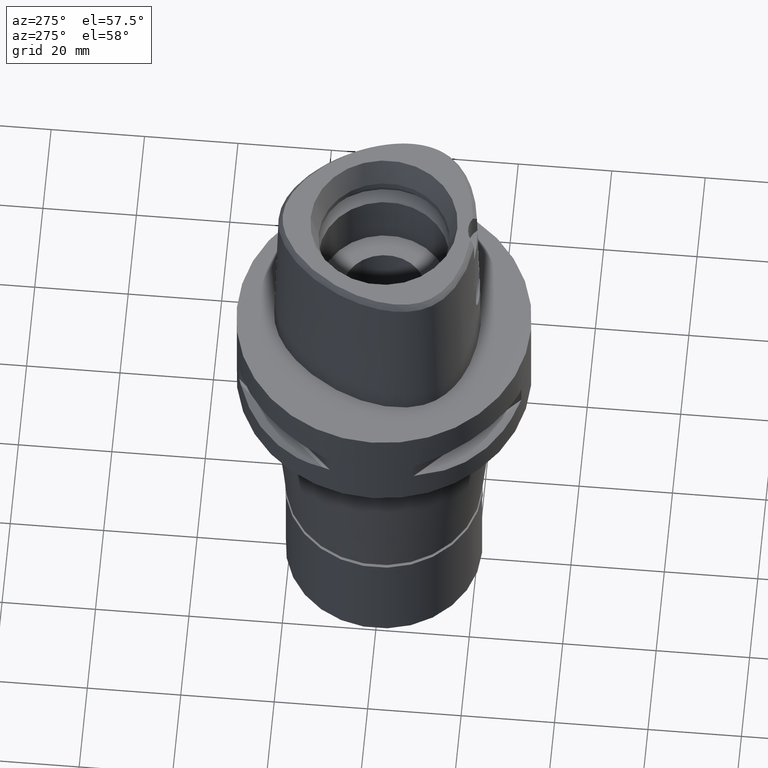
[diagram: clean part render]
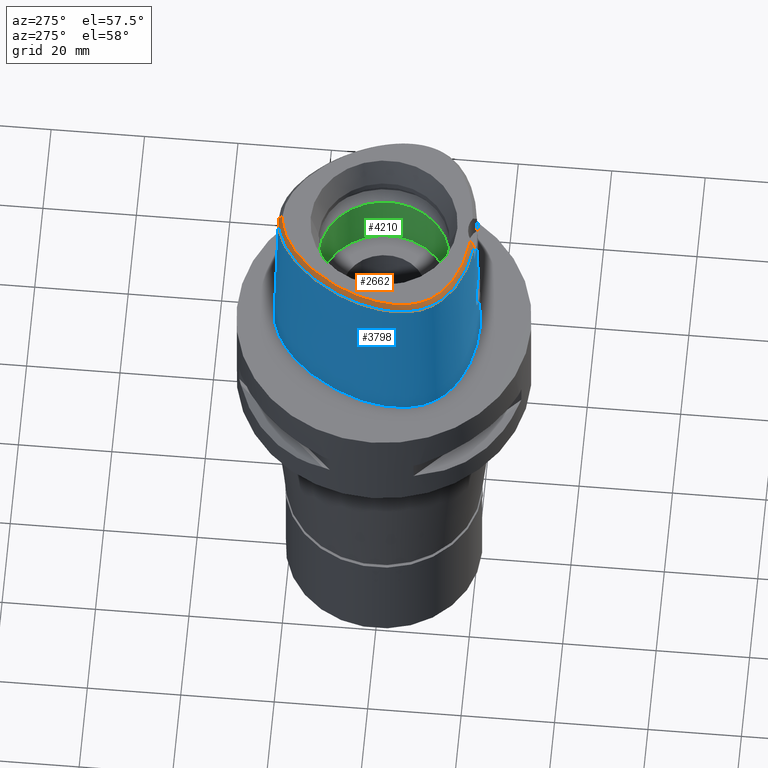
[diagram: same view with three faces highlighted in distinct colors, each labeled with its STEP entity id]
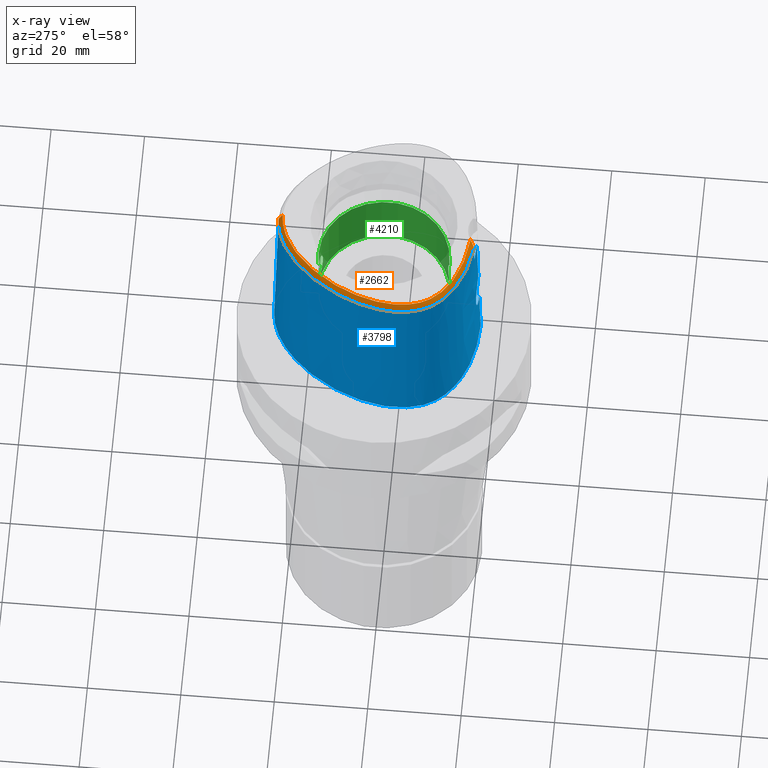
[diagram: x-ray of the same camera — body ghosted, the three highlighted faces saturated]
A machine part, auxiliary view with three faces highlighted in distinct colors.
The next image is the same camera in x-ray (body ghosted, the three faces saturated) — at least one of them is partly hidden behind the body in this view.
Their STEP definitions:

[orange] entity #2662 — the highlighted face is a freeform B-spline surface patch.
#1 = CARTESIAN_POINT ( 'NONE',  ( -5.851196932035000131, 20.05051886344000067, 38.15562410472000465 ) ) ;
#24 = CARTESIAN_POINT ( 'NONE',  ( -9.205275956059999487, -18.57728465988000011, 36.36619924171999685 ) ) ;
#28 = EDGE_CURVE ( 'NONE', #3179, #4048, #3146, .T. ) ;
#29 = CARTESIAN_POINT ( 'NONE',  ( -9.465617618083999929, 17.63458561017999671, 38.15562401940999848 ) ) ;
#58 = CARTESIAN_POINT ( 'NONE',  ( -10.42738325606000060, 16.79838715208000011, 38.15562378365000029 ) ) ;
#82 = CARTESIAN_POINT ( 'NONE',  ( 0.4010299528569999938, 21.94265940942000270, 37.55914779518000302 ) ) ;
#109 = CARTESIAN_POINT ( 'NONE',  ( -0.6883874204773999805, 22.28684280387000172, 36.96267127510999728 ) ) ;
#126 = CARTESIAN_POINT ( 'NONE',  ( -13.70645028111711383, 15.04851272300929033, 36.52186244848005003 ) ) ;
#133 = CARTESIAN_POINT ( 'NONE',  ( -20.76735210741999893, -0.9177774437805999996, 36.96267175287999862 ) ) ;
#150 = CARTESIAN_POINT ( 'NONE',  ( -12.78569244454000042, -17.21509869122999703, 36.36619487445000232 ) ) ;
#159 = CARTESIAN_POINT ( 'NONE',  ( -21.01475169455000014, -4.317149671114000498, 36.96267153469000277 ) ) ;
#169 = CARTESIAN_POINT ( 'NONE',  ( -18.31748213707748363, -11.58791794387703789, 37.99999999999807443 ) ) ;
#187 = CARTESIAN_POINT ( 'NONE',  ( -21.11651228328000229, -0.8649219212773998633, 36.36619557101000311 ) ) ;
#190 = CARTESIAN_POINT ( 'NONE',  ( -19.55745547455902766, -11.29150218116283000, 36.52186244848005003 ) ) ;
#211 = CARTESIAN_POINT ( 'NONE',  ( -12.63560255024999890, 15.06538665060999982, 37.55914803225999776 ) ) ;
#234 = CARTESIAN_POINT ( 'NONE',  ( -13.60698747348999937, 13.92716783222000032, 37.55914765866999971 ) ) ;
#257 = CARTESIAN_POINT ( 'NONE',  ( -16.53275768648000010, -13.96056047427999935, 37.55914774466000239 ) ) ;
#261 = CARTESIAN_POINT ( 'NONE',  ( -16.93638123745814994, -13.22593246128687561, 37.99999999999655387 ) ) ;
#273 = EDGE_CURVE ( 'NONE', #2952, #2904, #2348, .T. ) ;
#277 = CARTESIAN_POINT ( 'NONE',  ( -17.38253321326999767, -12.62219690900000124, 38.15562415999999502 ) ) ;
#300 = CARTESIAN_POINT ( 'NONE',  ( -20.88867724548000027, -6.256221844114000064, 36.96267171942000118 ) ) ;
#306 = CARTESIAN_POINT ( 'NONE',  ( -3.470663397164000062E-11, 21.68728795390000030, 38.00000000000000000 ) ) ;
#325 = CARTESIAN_POINT ( 'NONE',  ( -20.58115118580999692, -7.954531140772000519, 36.96267134616999783 ) ) ;
#329 = CARTESIAN_POINT ( 'NONE',  ( 0.6482100308403999644, 22.63670869952999709, 36.36619457498999708 ) ) ;
#350 = CARTESIAN_POINT ( 'NONE',  ( -11.41719832936000145, -17.04935015942999854, 37.55914772799000190 ) ) ;
#356 = CARTESIAN_POINT ( 'NONE',  ( -10.48962422759611179, 16.86631853279620330, 37.99999999999951683 ) ) ;
#376 = CARTESIAN_POINT ( 'NONE',  ( -13.45883952776999948, -16.08102098583999862, 37.55914777909000435 ) ) ;
#382 = CARTESIAN_POINT ( 'NONE',  ( -4.221749627003999805, 20.78049422141999969, 38.15562416792000278 ) ) ;
#385 = CARTESIAN_POINT ( 'NONE',  ( -9.524337278002601437, 17.70558492631591818, 38.00000000000021316 ) ) ;
#405 = CARTESIAN_POINT ( 'NONE',  ( -3.513211345024999765, -18.61651469762999866, 38.15562408077000356 ) ) ;
#409 = CARTESIAN_POINT ( 'NONE',  ( -0.02766290131584999909, 22.66073202252999863, 36.36619538388000450 ) ) ;
#437 = CARTESIAN_POINT ( 'NONE',  ( -6.712649697008000516, 19.57516851276000125, 38.15562416491999898 ) ) ;
#462 = CARTESIAN_POINT ( 'NONE',  ( -10.66594047882999874, 17.05875457763000114, 37.55914887800000201 ) ) ;
#483 = CARTESIAN_POINT ( 'NONE',  ( -1.312218558891999898, 21.51955016688999933, 38.15562422128000009 ) ) ;
#508 = CARTESIAN_POINT ( 'NONE',  ( -16.05245108974999724, 11.79254571508000105, 36.36619606189000109 ) ) ;
#521 = CARTESIAN_POINT ( 'NONE',  ( -4.793896640223999306, -19.17514178779999767, 36.96267144806000005 ) ) ;
#532 = CARTESIAN_POINT ( 'NONE',  ( -20.66160840599999915, -4.313853664578000568, 37.55914784201999623 ) ) ;
#540 = CARTESIAN_POINT ( 'NONE',  ( -15.00295592773546183, -14.82617991125815138, 38.00000000000186873 ) ) ;
#559 = CARTESIAN_POINT ( 'NONE',  ( -14.83876568827999876, 12.91141820236999926, 36.96267188507000157 ) ) ;
#580 = CARTESIAN_POINT ( 'NONE',  ( -20.09619618741448832, -10.23243843868459457, 36.52186244848005003 ) ) ;
#588 = CARTESIAN_POINT ( 'NONE',  ( -21.34935168628000213, -3.234860268575999953, 36.36619502498999879 ) ) ;
#609 = CARTESIAN_POINT ( 'NONE',  ( -20.88962605111999693, 0.4176188462099000298, 36.36619856594000311 ) ) ;
#629 = CARTESIAN_POINT ( 'NONE',  ( -2.682279906006999948, -18.78035848609999903, 38.00000000000000000 ) ) ;
#631 = CARTESIAN_POINT ( 'NONE',  ( -17.12008810919999746, -13.41138911156000013, 37.55914777225999757 ) ) ;
#634 = CARTESIAN_POINT ( 'NONE',  ( -19.54919922642350372, -9.228169790568195197, 38.00000000000275691 ) ) ;
#651 = CARTESIAN_POINT ( 'NONE',  ( -21.10284679867000079, -7.196432874396999857, 36.36619487526999706 ) ) ;
#674 = CARTESIAN_POINT ( 'NONE',  ( -20.36988890700000354, -8.723168248285000814, 36.96267141180999971 ) ) ;
#680 = CARTESIAN_POINT ( 'NONE',  ( -2.735698246183805082, 21.34559102902520777, 37.99999999999941025 ) ) ;
#697 = CARTESIAN_POINT ( 'NONE',  ( -20.62446248845000341, -5.295356469063000837, 37.55914806533999695 ) ) ;
#701 = CARTESIAN_POINT ( 'NONE',  ( -19.98419490692119638, -7.809898894996501362, 38.00000000000083134 ) ) ;
#723 = CARTESIAN_POINT ( 'NONE',  ( -18.66889430358999746, -12.73789407714999911, 36.36619566708999685 ) ) ;
#752 = CARTESIAN_POINT ( 'NONE',  ( -6.237714599492000467, -18.57458916978999852, 37.55914774887000362 ) ) ;
#755 = CARTESIAN_POINT ( 'NONE',  ( -2.195837874866000128, 22.45358611053999809, 36.36619504406999681 ) ) ;
#777 = CARTESIAN_POINT ( 'NONE',  ( -9.104812111435000688, -18.23874877356000113, 36.96267408347000583 ) ) ;
#782 = CARTESIAN_POINT ( 'NONE',  ( -8.190543331962999218, 19.90020107320000164, 36.36619510090000063 ) ) ;
#807 = CARTESIAN_POINT ( 'NONE',  ( -2.106303713249000342, -19.43649674259999927, 36.96267199636000100 ) ) ;
#811 = CARTESIAN_POINT ( 'NONE',  ( -9.155287023516999412, 19.22286944132999764, 36.36619453206999708 ) ) ;
#836 = CARTESIAN_POINT ( 'NONE',  ( -11.40009652080999913, 15.86266574026000065, 38.15562380237000184 ) ) ;
#861 = CARTESIAN_POINT ( 'NONE',  ( -7.995106289476000327, 19.60606095513000113, 36.96267145440000235 ) ) ;
#888 = CARTESIAN_POINT ( 'NONE',  ( -17.83986301631999893, 7.211061921267999608, 37.55914807498999863 ) ) ;
#905 = CARTESIAN_POINT ( 'NONE',  ( -11.28285888666999881, -16.72276041631999988, 38.15562418961000191 ) ) ;
#907 = CARTESIAN_POINT ( 'NONE',  ( -4.757642277158306676, 21.67478330407767828, 36.52186244848005003 ) ) ;
#913 = CARTESIAN_POINT ( 'NONE',  ( -14.15531020724999856, 14.37226403284999954, 36.36619454784000283 ) ) ;
#916 = CARTESIAN_POINT ( 'NONE',  ( -7.300578999876166542, -19.07170748892160361, 36.52186244848005003 ) ) ;
#931 = CARTESIAN_POINT ( 'NONE',  ( -10.37551053782999944, -17.82565057544000098, 36.96267307362000309 ) ) ;
#943 = CARTESIAN_POINT ( 'NONE',  ( -20.54362245458999681, 0.3470245775890999917, 36.96267365440999697 ) ) ;
#967 = CARTESIAN_POINT ( 'NONE',  ( -20.29096911127000169, -3.282486873002000038, 38.15562416862999839 ) ) ;
#993 = CARTESIAN_POINT ( 'NONE',  ( -19.17524477523999948, 2.841290598412999913, 38.15562396742999596 ) ) ;
#1015 = CARTESIAN_POINT ( 'NONE',  ( -17.90888281770000034, -13.09331145289000098, 36.96267146375999602 ) ) ;
#1035 = CARTESIAN_POINT ( 'NONE',  ( -16.09618480672000018, -14.78231305613000046, 36.96267151826999964 ) ) ;
#1039 = B_SPLINE_CURVE_WITH_KNOTS ( 'NONE', 3,
 ( #2471, #1725, #2568, #4816, #3712, #4053, #1749, #4095, #4002, #3288, #4841, #4409, #540, #1369, #2157, #261, #2084, #2871, #169, #2921, #4462, #2546, #634, #2176, #701, #1839, #3055, #2200, #2222, #3432, #2249, #2278, #1062, #3757, #2981, #4115, #4161, #3333, #3781, #4953, #3405, #3809, #4611, #1410, #3032, #356, #385, #1864, #1432, #4136, #4507, #4586, #1816, #1891, #680, #4532, #4928, #2590, #3735, #306 ),
 .UNSPECIFIED., .F., .F.,
 ( 4, 1, 1, 1, 1, 1, 1, 1, 1, 1, 1, 1, 1, 1, 1, 1, 1, 1, 1, 1, 1, 1, 1, 1, 1, 1, 1, 1, 1, 1, 1, 1, 1, 1, 1, 1, 1, 1, 1, 1, 1, 1, 1, 1, 1, 1, 1, 1, 1, 1, 1, 1, 1, 1, 1, 1, 1, 4 ),
 ( 0.0000000000000000000, 0.005420919554200098744, 0.02318126027639999531, 0.04094160099879995407, 0.05870194172099996166, 0.07646228244330000035, 0.09422262316550000794, 0.1119829638877999356, 0.1297433046099999432, 0.1475036453321999508, 0.1652639860544999895, 0.1830243267768000281, 0.2007846674991000668, 0.2185450082212999634, 0.2363053489436000021, 0.2540656896658000097, 0.2718260303881000484, 0.2895863711103000560, 0.3073467118325999836, 0.3251070525547999912, 0.3428673932771000299, 0.3606277339994000686, 0.3783880747216000762, 0.3961484154438998928, 0.4139087561661000114, 0.4316690968884000501, 0.4494294376106000577, 0.4671897783328999854, 0.4849501190552000240, 0.5027104597774000316, 0.5204708004996999593, 0.5382311412219000779, 0.5559914819442000056, 0.5737518226664000132, 0.5915121633886999408, 0.6092725041108999484, 0.6270328448331999871, 0.6447931855555000258, 0.6625535262777000334, 0.6803138669999999610, 0.6980742077221999686, 0.7158345484445000073, 0.7335948891667000149, 0.7513552298890000536, 0.7691155706112000612, 0.7868759113336000199, 0.8046362520558000275, 0.8223965927780999552, 0.8401569335002999628, 0.8579172742224999704, 0.8756776149448000091, 0.8934379556670000166, 0.9111982963893099363, 0.9289586371115700070, 0.9467189778338299666, 0.9644793185560800453, 0.9822396592783400049, 1.000000000000000000 ),
 .UNSPECIFIED. ) ;
#1056 = CARTESIAN_POINT ( 'NONE',  ( -18.82185988727000137, -11.93851680234999968, 36.96267124563999573 ) ) ;
#1062 = CARTESIAN_POINT ( 'NONE',  ( -19.94188961899767065, 0.2242544969878860484, 38.00000000000092371 ) ) ;
#1079 = CARTESIAN_POINT ( 'NONE',  ( -20.18751747780000017, -6.170774765463999501, 38.15562412164000250 ) ) ;
#1082 = FACE_OUTER_BOUND ( 'NONE', #1948, .T. ) ;
#1103 = CARTESIAN_POINT ( 'NONE',  ( -18.59728364233999898, -10.98783285895999917, 38.15562414674000280 ) ) ;
#1128 = CARTESIAN_POINT ( 'NONE',  ( -4.743926824363999373, -18.82557862180999919, 37.55914780520999585 ) ) ;
#1134 = CARTESIAN_POINT ( 'NONE',  ( -1.443944034995999992, 22.57094473700000137, 36.36619447234000546 ) ) ;
#1153 = CARTESIAN_POINT ( 'NONE',  ( -2.062953631076999805, -18.73186603473999767, 38.15562408010000439 ) ) ;
#1157 = CARTESIAN_POINT ( 'NONE',  ( -7.799669246988999660, 19.31192083705999707, 37.55914780789999696 ) ) ;
#1179 = CARTESIAN_POINT ( 'NONE',  ( -2.659101722797999834, -19.04542832354999859, 37.55914806650999793 ) ) ;
#1184 = CARTESIAN_POINT ( 'NONE',  ( -0.6441248231807999991, 21.58180903477000001, 38.15562418828999824 ) ) ;
#1212 = CARTESIAN_POINT ( 'NONE',  ( -11.14305492435999945, 17.57948942872999964, 36.36619906669000102 ) ) ;
#1223 = B_SPLINE_CURVE_WITH_KNOTS ( 'NONE', 3,
 ( #2840, #4375, #916, #3258, #3643, #1720, #4811, #2106, #190, #580, #3275, #4826, #3170, #2532, #3194, #1737, #126, #1358, #1307, #907, #2454, #4062, #1281 ),
 .UNSPECIFIED., .F., .F.,
 ( 4, 1, 1, 1, 1, 1, 1, 1, 1, 1, 1, 1, 1, 1, 1, 1, 1, 1, 1, 1, 4 ),
 ( 0.0000000000000000000, 0.03580973941716773801, 0.1234633994701237469, 0.1672902294965492032, 0.2111170595229746594, 0.2549438895495053647, 0.2768573045627180096, 0.2987707195758255718, 0.3206841345891434658, 0.3425975496023562772, 0.3864243796287815669, 0.4302512096552070231, 0.4740780396816324793, 0.5617316997345884744, 0.6493853597875446360, 0.7370390198403954374, 0.8246926798932463498, 0.8685195099196718616, 0.9123463399461287926, 0.9561731699725647404, 1.000000000000000000 ),
 .UNSPECIFIED. ) ;
#1239 = CARTESIAN_POINT ( 'NONE',  ( -3.453287708256000066, 21.04722054687000110, 38.15562412196000253 ) ) ;
#1263 = CARTESIAN_POINT ( 'NONE',  ( -12.89867265266999929, 15.30094686051999986, 36.96267198231999629 ) ) ;
#1279 = CARTESIAN_POINT ( 'NONE',  ( -7.744730065495000204, -18.60677084351999966, 36.96267331159999969 ) ) ;
#1281 = CARTESIAN_POINT ( 'NONE',  ( -1.574536826204000215E-11, 22.56201468012000078, 36.52186680743999858 ) ) ;
#1287 = CARTESIAN_POINT ( 'NONE',  ( -19.55510303647000114, 1.497338003154999875, 38.15562375941999562 ) ) ;
#1307 = CARTESIAN_POINT ( 'NONE',  ( -7.108589416785845216, 20.52412325828749928, 36.52186244848005003 ) ) ;
#1313 = CARTESIAN_POINT ( 'NONE',  ( -20.27203648620999843, -5.272509932328999227, 38.15562407051999827 ) ) ;
#1339 = CARTESIAN_POINT ( 'NONE',  ( -18.15862281283000002, 7.362987604608999703, 36.96267208288000461 ) ) ;
#1358 = CARTESIAN_POINT ( 'NONE',  ( -10.15538788053302000, 18.47129535093878516, 36.52186244848005003 ) ) ;
#1363 = CARTESIAN_POINT ( 'NONE',  ( -18.80931961239000216, 5.908791105555999401, 36.96267163867999272 ) ) ;
#1369 = CARTESIAN_POINT ( 'NONE',  ( -15.71788912669630811, -14.29843101566396335, 37.99999999999027978 ) ) ;
#1386 = CARTESIAN_POINT ( 'NONE',  ( -20.70757435878000052, -8.826682629169001260, 36.36619503381999863 ) ) ;
#1400 = CARTESIAN_POINT ( 'NONE',  ( -3.637738201363999835, -19.56971413236999879, 36.52186244848000030 ) ) ;
#1404 = CARTESIAN_POINT ( 'NONE',  ( -16.76606180825999814, -14.22571649940000071, 36.96267130558000247 ) ) ;
#1410 = CARTESIAN_POINT ( 'NONE',  ( -12.44116897271322841, 14.89128547409930015, 37.99999999999778311 ) ) ;
#1426 = CARTESIAN_POINT ( 'NONE',  ( -17.83777371889999941, -12.08061897408000007, 38.15562410746999689 ) ) ;
#1432 = CARTESIAN_POINT ( 'NONE',  ( -7.655222869372565242, 19.09452359226731133, 37.99999999999721467 ) ) ;
#1452 = CARTESIAN_POINT ( 'NONE',  ( -18.91354149997999912, -10.42698544265000038, 38.15562419279999773 ) ) ;
#1481 = CARTESIAN_POINT ( 'NONE',  ( -20.92440820496000242, -8.037696416541999511, 36.36619493044000251 ) ) ;
#1508 = CARTESIAN_POINT ( 'NONE',  ( -9.004348266810000112, -17.90021288724999948, 37.55914892522999793 ) ) ;
#1533 = CARTESIAN_POINT ( 'NONE',  ( -2.127978754336000033, -19.78881209654000273, 36.36619595449000286 ) ) ;
#1537 = CARTESIAN_POINT ( 'NONE',  ( 0.4141452766015999987, 22.29545590493000162, 36.96267142447000253 ) ) ;
#1557 = CARTESIAN_POINT ( 'NONE',  ( -2.686798740497999827, -19.39733756008999777, 36.96267206292000651 ) ) ;
#1560 = CARTESIAN_POINT ( 'NONE',  ( -9.690678356155000728, 17.90671181993999994, 37.55914821014000182 ) ) ;
#1585 = CARTESIAN_POINT ( 'NONE',  ( -13.79509359130999968, -16.70215161494000000, 36.36619499411000334 ) ) ;
#1590 = CARTESIAN_POINT ( 'NONE',  ( -10.90449770159999865, 17.31912200318000217, 36.96267397233999930 ) ) ;
#1616 = CARTESIAN_POINT ( 'NONE',  ( 0.4272606003460999724, 22.64825240043999699, 36.36619505376000205 ) ) ;
#1644 = CARTESIAN_POINT ( 'NONE',  ( -0.6662561218290999898, 21.93432591931999909, 37.55914773170000132 ) ) ;
#1668 = CARTESIAN_POINT ( 'NONE',  ( -13.33282610661000156, 13.70461973190999849, 38.15562421407999949 ) ) ;
#1682 = CARTESIAN_POINT ( 'NONE',  ( -4.693957008505000417, -18.47601545582000071, 38.15562416235999876 ) ) ;
#1694 = CARTESIAN_POINT ( 'NONE',  ( -14.55428321531000080, 12.70222970372999960, 37.55914799093000056 ) ) ;
#1719 = CARTESIAN_POINT ( 'NONE',  ( -15.12324816123999938, 13.12060670100000159, 36.36619577921000257 ) ) ;
#1720 = CARTESIAN_POINT ( 'NONE',  ( -16.39211280192236941, -14.95758113318801463, 36.52186244848005003 ) ) ;
#1725 = CARTESIAN_POINT ( 'NONE',  ( -2.841965291530497151, -18.76757795571594656, 37.99999999999754152 ) ) ;
#1737 = CARTESIAN_POINT ( 'NONE',  ( -17.27359245833550006, 9.972912913898872134, 36.52186244848005003 ) ) ;
#1743 = CARTESIAN_POINT ( 'NONE',  ( -13.16174275508999969, 15.53650707042999990, 36.36619593238000192 ) ) ;
#1749 = CARTESIAN_POINT ( 'NONE',  ( -8.930096025510643187, -17.65000298921777144, 38.00000000000139266 ) ) ;
#1764 = CARTESIAN_POINT ( 'NONE',  ( -20.03220345523000034, -8.619653867400000280, 37.55914778980000079 ) ) ;
#1787 = CARTESIAN_POINT ( 'NONE',  ( -16.99936593003999974, -14.49087252452000030, 36.36619486650999988 ) ) ;
#1810 = CARTESIAN_POINT ( 'NONE',  ( -15.55445281109999911, -15.62093672600000183, 36.36619602692000086 ) ) ;
#1812 = CARTESIAN_POINT ( 'NONE',  ( -3.637738201363999835, -19.56971413236999879, 36.52186244848000030 ) ) ;
#1816 = CARTESIAN_POINT ( 'NONE',  ( -4.254559144977626772, 20.86660163697629145, 37.99999999999740652 ) ) ;
#1834 = CARTESIAN_POINT ( 'NONE',  ( -19.52432213578000031, -9.976036859163999182, 37.55914784683999841 ) ) ;
#1839 = CARTESIAN_POINT ( 'NONE',  ( -20.15090095365301792, -7.024227649787747829, 38.00000000000400746 ) ) ;
#1858 = CARTESIAN_POINT ( 'NONE',  ( -20.16944985261000056, -10.26383349833000125, 36.36619524521000102 ) ) ;
#1862 = CARTESIAN_POINT ( 'NONE',  ( 0.3879146291123999890, 21.58986291391000023, 38.15562416589000350 ) ) ;
#1864 = CARTESIAN_POINT ( 'NONE',  ( -8.578220530114261777, 18.44656747109408812, 38.00000000000489564 ) ) ;
#1883 = CARTESIAN_POINT ( 'NONE',  ( -7.828313553667999969, -18.94985973808000068, 36.36619802601000373 ) ) ;
#1891 = CARTESIAN_POINT ( 'NONE',  ( -3.481017203589008346, 21.13509756881642332, 37.99999999999834444 ) ) ;
#1912 = CARTESIAN_POINT ( 'NONE',  ( -2.084628672162999852, -19.08418138866999669, 37.55914803823000625 ) ) ;
#1915 = CARTESIAN_POINT ( 'NONE',  ( -5.309434053842999823, 21.09492844764999830, 36.96267174362999697 ) ) ;
#1939 = CARTESIAN_POINT ( 'NONE',  ( -14.53149486865000206, -15.86851577658000068, 36.96267174081000206 ) ) ;
#1945 = CARTESIAN_POINT ( 'NONE',  ( -6.013502882283000339, 20.36417658559999921, 37.55914796849999959 ) ) ;
#1948 = EDGE_LOOP ( 'NONE', ( #4187, #4424, #3522, #2536 ) ) ;
#1972 = CARTESIAN_POINT ( 'NONE',  ( -7.071277748460000012, 20.18366093837000008, 36.96267143088999774 ) ) ;
#1996 = CARTESIAN_POINT ( 'NONE',  ( -12.15375606230999850, 16.60716037450999849, 36.36619887010999719 ) ) ;
#2003 = EDGE_CURVE ( 'NONE', #4048, #2952, #1223, .T. ) ;
#2023 = CARTESIAN_POINT ( 'NONE',  ( -4.347501961761000011, 21.11052676121000360, 37.55914778942999988 ) ) ;
#2046 = CARTESIAN_POINT ( 'NONE',  ( -19.51253183497999899, 2.945850517455000261, 37.55914835737999624 ) ) ;
#2062 = CARTESIAN_POINT ( 'NONE',  ( -10.14073337228000149, -17.15954743671000315, 38.15562391848000345 ) ) ;
#2075 = CARTESIAN_POINT ( 'NONE',  ( -20.58119174315000066, 1.760828289963999982, 36.36619932098999897 ) ) ;
#2084 = CARTESIAN_POINT ( 'NONE',  ( -17.45119705493963025, -12.68365517585838731, 38.00000000000088818 ) ) ;
#2103 = CARTESIAN_POINT ( 'NONE',  ( -20.23916217425999875, 1.672998194361000168, 36.96267413380000022 ) ) ;
#2106 = CARTESIAN_POINT ( 'NONE',  ( -18.90964971337863432, -12.28759719904467929, 36.52186244848005003 ) ) ;
#2129 = CARTESIAN_POINT ( 'NONE',  ( -17.52110321981999874, 7.059136237926999513, 38.15562406710999710 ) ) ;
#2136 = CARTESIAN_POINT ( 'NONE',  ( -3.470663397164000062E-11, 21.68728795390000030, 38.00000000000000000 ) ) ;
#2152 = CARTESIAN_POINT ( 'NONE',  ( -20.21328968115999913, -2.186402662999999968, 38.15562420732000248 ) ) ;
#2157 = CARTESIAN_POINT ( 'NONE',  ( -16.36032397154064100, -13.76458520344818481, 38.00000000000129319 ) ) ;
#2172 = CARTESIAN_POINT ( 'NONE',  ( -17.36864489746999851, -13.66231336342999825, 36.96267137055000518 ) ) ;
#2176 = CARTESIAN_POINT ( 'NONE',  ( -19.78262210840352608, -8.543146992553225516, 37.99999999999763389 ) ) ;
#2194 = CARTESIAN_POINT ( 'NONE',  ( -19.11188314219999995, -12.14011535039999856, 36.36619477210000184 ) ) ;
#2200 = CARTESIAN_POINT ( 'NONE',  ( -20.36398648679813661, -5.278470727085256442, 37.99999999999571543 ) ) ;
#2217 = CARTESIAN_POINT ( 'NONE',  ( -16.31370935929999888, -15.06055103217000024, 36.36619520149000095 ) ) ;
#2222 = CARTESIAN_POINT ( 'NONE',  ( -20.40060226222979267, -4.311417605381292262, 38.00000000000083844 ) ) ;
#2237 = CARTESIAN_POINT ( 'NONE',  ( -3.339321438867558722, -19.25325016374217668, 37.10705438591227079 ) ) ;
#2242 = CARTESIAN_POINT ( 'NONE',  ( -19.69451800345000336, -8.516139486515999835, 38.15562416779000188 ) ) ;
#2247 = CARTESIAN_POINT ( 'NONE',  ( 0.6090544304070999448, 21.93186512587999815, 37.55914766598999677 ) ) ;
#2249 = CARTESIAN_POINT ( 'NONE',  ( -20.30498420087022282, -2.177378896257961660, 38.00000000000562039 ) ) ;
#2271 = CARTESIAN_POINT ( 'NONE',  ( -19.20135441529999909, -11.35408885969999915, 36.96267155211000244 ) ) ;
#2278 = CARTESIAN_POINT ( 'NONE',  ( -20.16012968311788356, -1.009698174524245484, 37.99999999999648281 ) ) ;
#2297 = CARTESIAN_POINT ( 'NONE',  ( -2.339021339616000006, -19.77582488291000118, 36.36619600779000194 ) ) ;
#2303 = CARTESIAN_POINT ( 'NONE',  ( -2.971523897519000368, 22.28383542753000057, 36.36619564453999232 ) ) ;
#2324 = CARTESIAN_POINT ( 'NONE',  ( -10.25812195505000091, -17.49259900608000251, 37.55914849604999972 ) ) ;
#2329 = CARTESIAN_POINT ( 'NONE',  ( -8.733931306071999856, 18.65603827480000376, 37.55914765442000203 ) ) ;
#2348 = LINE ( 'NONE', #3881, #4529 ) ;
#2358 = CARTESIAN_POINT ( 'NONE',  ( -9.915739094227001615, 18.17883802971000051, 36.96267240087999539 ) ) ;
#2384 = CARTESIAN_POINT ( 'NONE',  ( -11.65131636798000159, 16.11083061833999963, 37.55914882495000029 ) ) ;
#2409 = CARTESIAN_POINT ( 'NONE',  ( -7.250591774185999761, 20.48790715117000261, 36.36619506386999490 ) ) ;
#2434 = CARTESIAN_POINT ( 'NONE',  ( -13.88114884036999896, 14.14971593253999949, 36.96267110324999550 ) ) ;
#2452 = CARTESIAN_POINT ( 'NONE',  ( -8.903884422185001313, -17.56167700093000050, 38.15562376697999980 ) ) ;
#2454 = CARTESIAN_POINT ( 'NONE',  ( -2.376843896518763710, 22.39422508473763784, 36.52186244848005003 ) ) ;
#2459 = CARTESIAN_POINT ( 'NONE',  ( -20.99655749461000198, -3.250735803385000455, 36.96267140620000191 ) ) ;
#2471 = CARTESIAN_POINT ( 'NONE',  ( -2.682279906006999948, -18.78035848609999903, 38.00000000000000000 ) ) ;
#2479 = CARTESIAN_POINT ( 'NONE',  ( -7.577563089150000764, -17.92059305440999850, 38.15562388277999872 ) ) ;
#2489 = CARTESIAN_POINT ( 'NONE',  ( -2.315183784238000086, -19.42364258287999945, 36.96267203020000380 ) ) ;
#2490 = CARTESIAN_POINT ( 'NONE',  ( -18.47738260933000021, 7.514913287950000687, 36.36619609075999904 ) ) ;
#2515 = CARTESIAN_POINT ( 'NONE',  ( -20.19761885806000379, 0.2764303089683000092, 37.55914874287999794 ) ) ;
#2532 = CARTESIAN_POINT ( 'NONE',  ( -21.07430010673121501, -0.4408303445193672565, 36.52186244848005003 ) ) ;
#2536 = ORIENTED_EDGE ( 'NONE', *, *, #28, .F. ) ;
#2539 = CARTESIAN_POINT ( 'NONE',  ( -19.89713260535999950, 1.585168098757999910, 37.55914894661000147 ) ) ;
#2546 = CARTESIAN_POINT ( 'NONE',  ( -19.28591707037072567, -9.869682450887047764, 37.99999999999413092 ) ) ;
#2563 = CARTESIAN_POINT ( 'NONE',  ( -21.23925712931999854, -6.298945383438999457, 36.36619551829999608 ) ) ;
#2568 = CARTESIAN_POINT ( 'NONE',  ( -3.522896839654117596, -18.70811514173224666, 37.99999999999472777 ) ) ;
#2584 = CARTESIAN_POINT ( 'NONE',  ( -15.15176721487000044, -15.04063041520000077, 37.55914805776999543 ) ) ;
#2590 = CARTESIAN_POINT ( 'NONE',  ( -0.6498990081535711560, 21.67378274708253016, 37.99999999999041478 ) ) ;
#2609 = CARTESIAN_POINT ( 'NONE',  ( -17.64570801548000034, -12.85775418094000067, 37.55914781187999552 ) ) ;
#2633 = CARTESIAN_POINT ( 'NONE',  ( -19.79368565945999947, -9.319674264646002015, 37.55914792061000185 ) ) ;
#2636 = CARTESIAN_POINT ( 'NONE',  ( 0.5894766301903999750, 21.57944333905999912, 38.15562421150000461 ) ) ;
#2657 = CARTESIAN_POINT ( 'NONE',  ( -18.53183663233999923, -11.73691825430000080, 37.55914771918000383 ) ) ;
#2662 = ADVANCED_FACE ( 'NONE', ( #1082 ), #4167, .F. ) ;
#2684 = CARTESIAN_POINT ( 'NONE',  ( -3.624579049095999927, -19.66977336357999917, 36.36619594734000316 ) ) ;
#2689 = CARTESIAN_POINT ( 'NONE',  ( -0.7105187191256999713, 22.63935968842000079, 36.36619481851000302 ) ) ;
#2714 = CARTESIAN_POINT ( 'NONE',  ( -3.772132573568000247, 22.05766581066999876, 36.36619551496999492 ) ) ;
#2734 = CARTESIAN_POINT ( 'NONE',  ( -2.714495758197999820, -19.74924679663000049, 36.36619605932000354 ) ) ;
#2737 = CARTESIAN_POINT ( 'NONE',  ( -5.164983225594999894, 20.77264954466000191, 37.55914793081999647 ) ) ;
#2754 = DIRECTION ( 'NONE',  ( -1.103962971621015114E-11, -0.5092834681090075977, 0.8605988316927122295 ) ) ;
#2764 = CARTESIAN_POINT ( 'NONE',  ( -2.065274494102999903, 21.75935819445999897, 37.55914779256000458 ) ) ;
#2789 = CARTESIAN_POINT ( 'NONE',  ( -12.37253244783000028, 14.82982644071000067, 38.15562408219999924 ) ) ;
#2811 = CARTESIAN_POINT ( 'NONE',  ( -16.80527927073999805, 8.474296772254001908, 38.15562412851999596 ) ) ;
#2813 = CARTESIAN_POINT ( 'NONE',  ( -2.682279906006999948, -18.78035848609999903, 38.00000000000000000 ) ) ;
#2826 = CARTESIAN_POINT ( 'NONE',  ( -12.48313554821999993, -16.57689084010999991, 37.55914774680000789 ) ) ;
#2836 = CARTESIAN_POINT ( 'NONE',  ( -15.46428122915999914, 11.40163390753999906, 37.55914806721000332 ) ) ;
#2840 = CARTESIAN_POINT ( 'NONE',  ( -3.637738201363999835, -19.56971413236999879, 36.52186244848000030 ) ) ;
#2862 = CARTESIAN_POINT ( 'NONE',  ( -17.73894685012000139, 8.974760895130001970, 36.36619544610000077 ) ) ;
#2871 = CARTESIAN_POINT ( 'NONE',  ( -17.91005512243458853, -12.13778127739950108, 37.99999999999884892 ) ) ;
#2890 = CARTESIAN_POINT ( 'NONE',  ( -18.70992889997999953, 4.224732618038999910, 38.15562422392999764 ) ) ;
#2904 = VERTEX_POINT ( 'NONE', #2136 ) ;
#2914 = CARTESIAN_POINT ( 'NONE',  ( -19.13494425626999984, 6.045390110632999914, 36.36619539113999622 ) ) ;
#2921 = CARTESIAN_POINT ( 'NONE',  ( -18.67608643721881023, -11.03561202291130883, 37.99999999999729994 ) ) ;
#2934 = CARTESIAN_POINT ( 'NONE',  ( -18.89931902881999903, -11.17096085933000005, 37.55914784942999773 ) ) ;
#2952 = VERTEX_POINT ( 'NONE', #4791 ) ;
#2954 = CARTESIAN_POINT ( 'NONE',  ( -19.50338980179000004, -11.53721686007999914, 36.36619525479999737 ) ) ;
#2975 = CARTESIAN_POINT ( 'NONE',  ( -18.39185410869999870, -12.51880237612999913, 36.96267181388000012 ) ) ;
#2981 = CARTESIAN_POINT ( 'NONE',  ( -19.26324493738565735, 2.868570891456909688, 37.99999999999765521 ) ) ;
#3002 = CARTESIAN_POINT ( 'NONE',  ( -17.61720168573999956, -13.91323761531000081, 36.36619496884000569 ) ) ;
#3014 = EDGE_CURVE ( 'NONE', #3179, #2904, #1039, .T. ) ;
#3026 = CARTESIAN_POINT ( 'NONE',  ( -20.45526964915999812, -9.567286757019999754, 36.36619551859999433 ) ) ;
#3032 = CARTESIAN_POINT ( 'NONE',  ( -11.46564124494538994, 15.92741340513277670, 37.99999999999451461 ) ) ;
#3049 = CARTESIAN_POINT ( 'NONE',  ( -4.843866456083000926, -19.52470495377999882, 36.36619509091999447 ) ) ;
#3055 = CARTESIAN_POINT ( 'NONE',  ( -20.27898581532444666, -6.181921586189747408, 37.99999999999664624 ) ) ;
#3080 = CARTESIAN_POINT ( 'NONE',  ( -6.338114782778999867, 20.99149202989999807, 36.36619569604999924 ) ) ;
#3100 = CARTESIAN_POINT ( 'NONE',  ( -13.29071249600000115, -15.77045567128999792, 38.15562417158000130 ) ) ;
#3105 = CARTESIAN_POINT ( 'NONE',  ( -6.175808832530999659, 20.67783430774999687, 36.96267183226999720 ) ) ;
#3128 = CARTESIAN_POINT ( 'NONE',  ( -3.665850951797000157, 21.72085072273999984, 36.96267171729999745 ) ) ;
#3146 = B_SPLINE_CURVE_WITH_KNOTS ( 'NONE', 3,
 ( #629, #4574, #2237, #1400 ),
 .UNSPECIFIED., .F., .F.,
 ( 4, 4 ),
 ( 0.0000000000000000000, 1.000000000000000000 ),
 .UNSPECIFIED. ) ;
#3154 = CARTESIAN_POINT ( 'NONE',  ( -1.356127050927000033, 21.87001502358999971, 37.55914763830000425 ) ) ;
#3170 = CARTESIAN_POINT ( 'NONE',  ( -21.32871527669557565, -4.105831244394233970, 36.52186244848005003 ) ) ;
#3176 = CARTESIAN_POINT ( 'NONE',  ( -16.62498183764999737, 10.22412745341000040, 36.96267143994000293 ) ) ;
#3179 = VERTEX_POINT ( 'NONE', #2813 ) ;
#3194 = CARTESIAN_POINT ( 'NONE',  ( -19.88562090098734103, 4.345879983792007017, 36.52186244848005003 ) ) ;
#3202 = CARTESIAN_POINT ( 'NONE',  ( -20.56473647618000200, -2.151816365906999984, 37.55914767784999952 ) ) ;
#3219 = CARTESIAN_POINT ( 'NONE',  ( -13.62696655953999958, -16.39158630038999931, 36.96267138660000029 ) ) ;
#3230 = CARTESIAN_POINT ( 'NONE',  ( -16.32199521088000083, 10.04277733082999902, 37.55914780175999823 ) ) ;
#3257 = CARTESIAN_POINT ( 'NONE',  ( -18.15807032463000326, 5.635593095402000152, 38.15562413375000261 ) ) ;
#3258 = CARTESIAN_POINT ( 'NONE',  ( -10.91891098964951468, -18.03046406390807022, 36.52186244848005003 ) ) ;
#3275 = CARTESIAN_POINT ( 'NONE',  ( -20.67704215115657718, -8.734985316449671799, 36.52186244848005003 ) ) ;
#3283 = CARTESIAN_POINT ( 'NONE',  ( -15.17019629885999876, 11.20617800378000162, 38.15562406987000088 ) ) ;
#3288 = CARTESIAN_POINT ( 'NONE',  ( -12.37132652997968130, -16.34104299087929135, 37.99999999999791100 ) ) ;
#3303 = CARTESIAN_POINT ( 'NONE',  ( -20.53809736164000199, -6.213498304788999782, 37.55914792053000184 ) ) ;
#3327 = CARTESIAN_POINT ( 'NONE',  ( -21.32931449292000181, -5.341049542528999439, 36.36619605497000407 ) ) ;
#3333 = CARTESIAN_POINT ( 'NONE',  ( -17.60426951086956393, 7.098774535282385223, 37.99999999999359090 ) ) ;
#3347 = CARTESIAN_POINT ( 'NONE',  ( -14.16178646832999988, -15.26667973294000014, 38.15562411842999779 ) ) ;
#3372 = CARTESIAN_POINT ( 'NONE',  ( -19.20175827737000063, -9.832138539579998948, 38.15562414765000199 ) ) ;
#3399 = CARTESIAN_POINT ( 'NONE',  ( -19.84688599420000088, -10.11993517875000137, 36.96267154602000460 ) ) ;
#3405 = CARTESIAN_POINT ( 'NONE',  ( -15.24692477332585128, 11.25717358966621795, 38.00000000000341061 ) ) ;
#3426 = CARTESIAN_POINT ( 'NONE',  ( -12.33185710006000058, -16.25778691454999958, 38.15562418297000136 ) ) ;
#3432 = CARTESIAN_POINT ( 'NONE',  ( -20.38301517462902268, -3.278344853327688213, 37.99999999999729283 ) ) ;
#3451 = CARTESIAN_POINT ( 'NONE',  ( -6.170959366533999457, -18.22783661807999778, 38.15562418223999686 ) ) ;
#3456 = CARTESIAN_POINT ( 'NONE',  ( -5.453884882089999664, 21.41720735062999736, 36.36619555643999746 ) ) ;
#3480 = CARTESIAN_POINT ( 'NONE',  ( -6.371225065409999999, -19.26809427323000179, 36.36619488214000739 ) ) ;
#3484 = CARTESIAN_POINT ( 'NONE',  ( -8.944609164795000567, 18.93945385805999848, 36.96267109325000177 ) ) ;
#3511 = CARTESIAN_POINT ( 'NONE',  ( -10.14079983230000082, 18.45096423947000019, 36.36619659162000318 ) ) ;
#3522 = ORIENTED_EDGE ( 'NONE', *, *, #2003, .F. ) ;
#3534 = CARTESIAN_POINT ( 'NONE',  ( -2.713235240198999865, 21.25622081243000139, 38.15562410961999973 ) ) ;
#3564 = CARTESIAN_POINT ( 'NONE',  ( -7.604232204502999970, 19.01778071899000011, 38.15562416140000579 ) ) ;
#3585 = CARTESIAN_POINT ( 'NONE',  ( -19.84981889471999850, 3.050410436496000077, 36.96267274732999653 ) ) ;
#3602 = CARTESIAN_POINT ( 'NONE',  ( -2.267508673481999804, -18.71927798282000310, 38.15562407501999331 ) ) ;
#3613 = CARTESIAN_POINT ( 'NONE',  ( -20.06903175569000197, -1.023488488786999939, 38.15562411661999676 ) ) ;
#3639 = CARTESIAN_POINT ( 'NONE',  ( -20.41819193154999823, -0.9706329662837999139, 37.55914793475000124 ) ) ;
#3643 = CARTESIAN_POINT ( 'NONE',  ( -14.22011356156031603, -16.41829364186631324, 36.52186244848005003 ) ) ;
#3662 = CARTESIAN_POINT ( 'NONE',  ( -18.48369496851000449, 5.772192100478999777, 37.55914788620999190 ) ) ;
#3687 = CARTESIAN_POINT ( 'NONE',  ( -16.92796846441000014, 10.40547757597999912, 36.36619507811999341 ) ) ;
#3707 = CARTESIAN_POINT ( 'NONE',  ( -16.29945356470999940, -13.69540444915999799, 38.15562418373000497 ) ) ;
#3712 = CARTESIAN_POINT ( 'NONE',  ( -6.188376196367053161, -18.31830638231731712, 37.99999999999889155 ) ) ;
#3730 = CARTESIAN_POINT ( 'NONE',  ( -20.40776602533999906, -7.070694061292000399, 37.55914774701999903 ) ) ;
#3735 = CARTESIAN_POINT ( 'NONE',  ( -0.2181979014508709236, 21.68728795389386832, 37.99999999999274536 ) ) ;
#3752 = CARTESIAN_POINT ( 'NONE',  ( -14.95042441676000067, -14.75047725980999935, 38.15562407320000204 ) ) ;
#3757 = CARTESIAN_POINT ( 'NONE',  ( -19.64434054692831211, 1.520253387635775999, 37.99999999999221956 ) ) ;
#3774 = CARTESIAN_POINT ( 'NONE',  ( -19.46289366461000014, -9.195868018459000481, 38.15562412162000072 ) ) ;
#3778 = CARTESIAN_POINT ( 'NONE',  ( 0.6286322306236999946, 22.28428691270999806, 36.96267112048999337 ) ) ;
#3781 = CARTESIAN_POINT ( 'NONE',  ( -16.88647904405171474, 8.517821442303228352, 37.99999999999916866 ) ) ;
#3804 = CARTESIAN_POINT ( 'NONE',  ( -19.53957044170000046, -10.75429124263999903, 36.96267124514999836 ) ) ;
#3809 = CARTESIAN_POINT ( 'NONE',  ( -14.34402387966053816, 12.54761970512520186, 37.99999999999793232 ) ) ;
#3830 = CARTESIAN_POINT ( 'NONE',  ( -3.550333913048999701, -18.96760091962000061, 37.55914803630000165 ) ) ;
#3833 = CARTESIAN_POINT ( 'NONE',  ( -3.559569330026999712, 21.38403563480000003, 37.55914791962999999 ) ) ;
#3856 = CARTESIAN_POINT ( 'NONE',  ( -7.661146577322999640, -18.26368194896999597, 37.55914859719000276 ) ) ;
#3860 = CARTESIAN_POINT ( 'NONE',  ( -0.02535902863684999856, 21.60116535659999926, 38.15562413443999645 ) ) ;
#3881 = CARTESIAN_POINT ( 'NONE',  ( -1.574536826204000215E-11, 22.56201468012000078, 36.52186680743999858 ) ) ;
#3892 = CARTESIAN_POINT ( 'NONE',  ( -2.130556184485000060, 22.10647215250000031, 36.96267141831999936 ) ) ;
#3916 = CARTESIAN_POINT ( 'NONE',  ( -11.90253621513999960, 16.35899549642999773, 36.96267384752999874 ) ) ;
#3940 = CARTESIAN_POINT ( 'NONE',  ( -4.473254296517999329, 21.44055930098999951, 36.96267141095000142 ) ) ;
#3968 = CARTESIAN_POINT ( 'NONE',  ( -19.37353940971999933, 4.466377775455000254, 36.96267103755000250 ) ) ;
#3984 = CARTESIAN_POINT ( 'NONE',  ( -12.63441399637999929, -16.89599476567000025, 36.96267131061999578 ) ) ;
#3993 = CARTESIAN_POINT ( 'NONE',  ( -20.30846511746000260, -4.310557658041999751, 38.15562414936000124 ) ) ;
#4002 = CARTESIAN_POINT ( 'NONE',  ( -11.31790883121394664, -16.80796958613203174, 37.99999999999829470 ) ) ;
#4021 = CARTESIAN_POINT ( 'NONE',  ( -14.26980074235000018, 12.49304120510000082, 38.15562409678999956 ) ) ;
#4047 = CARTESIAN_POINT ( 'NONE',  ( -20.64376330293999828, -3.266611338192999980, 37.55914778742000237 ) ) ;
#4048 = VERTEX_POINT ( 'NONE', #1812 ) ;
#4053 = CARTESIAN_POINT ( 'NONE',  ( -7.599370508970928029, -18.01010694911694543, 38.00000000000116529 ) ) ;
#4062 = CARTESIAN_POINT ( 'NONE',  ( -0.7901461696977494231, 22.56201478746278966, 36.52186244848005003 ) ) ;
#4066 = CARTESIAN_POINT ( 'NONE',  ( -17.11650179719999798, 8.641118146545998968, 37.55914790104999668 ) ) ;
#4090 = CARTESIAN_POINT ( 'NONE',  ( -16.87153132092999996, -13.16046485969000024, 38.15562417398000150 ) ) ;
#4095 = CARTESIAN_POINT ( 'NONE',  ( -10.17136073855324163, -17.24644253470144051, 37.99999999999880629 ) ) ;
#4112 = CARTESIAN_POINT ( 'NONE',  ( -15.35311001299000111, -15.33078357059999774, 36.96267204235000037 ) ) ;
#4115 = CARTESIAN_POINT ( 'NONE',  ( -18.79649882724566723, 4.256255933891545773, 37.99999999999069900 ) ) ;
#4130 = CARTESIAN_POINT ( 'NONE',  ( -18.17205761990999946, -13.32886872482999863, 36.36619511565000096 ) ) ;
#4136 = CARTESIAN_POINT ( 'NONE',  ( -6.759433772717996725, 19.65454812512732374, 37.99999999999214850 ) ) ;
#4156 = CARTESIAN_POINT ( 'NONE',  ( -20.23789416666999941, -7.871365865002000639, 37.55914776191000470 ) ) ;
#4161 = CARTESIAN_POINT ( 'NONE',  ( -18.24302769442104122, 5.671232572958529339, 37.99999999999300115 ) ) ;
#4167 = B_SPLINE_SURFACE_WITH_KNOTS ( 'NONE', 3, 3, ( 
 ( #2636, #2247, #3778, #329 ),
 ( #1862, #82, #1537, #1616 ),
 ( #3860, #4609, #4658, #409 ),
 ( #1184, #1644, #109, #2689 ),
 ( #483, #3154, #4264, #1134 ),
 ( #4211, #2764, #3892, #755 ),
 ( #3534, #4713, #4320, #2303 ),
 ( #1239, #3833, #3128, #2714 ),
 ( #382, #2023, #3940, #4686 ),
 ( #4236, #2737, #1915, #3456 ),
 ( #1, #1945, #3105, #3080 ),
 ( #437, #4631, #1972, #2409 ),
 ( #3564, #1157, #861, #782 ),
 ( #4292, #2329, #3484, #811 ),
 ( #29, #1560, #2358, #3511 ),
 ( #58, #462, #1590, #1212 ),
 ( #836, #2384, #3916, #1996 ),
 ( #2789, #211, #1263, #1743 ),
 ( #1668, #234, #2434, #913 ),
 ( #4021, #1694, #559, #1719 ),
 ( #3283, #2836, #4343, #508 ),
 ( #4733, #3230, #3176, #3687 ),
 ( #2811, #4066, #4836, #2862 ),
 ( #2129, #888, #1339, #2490 ),
 ( #3257, #3662, #1363, #2914 ),
 ( #2890, #4454, #3968, #4808 ),
 ( #993, #2046, #3585, #4371 ),
 ( #1287, #2539, #2103, #2075 ),
 ( #4399, #2515, #943, #609 ),
 ( #3613, #3639, #133, #187 ),
 ( #2152, #3202, #4759, #4428 ),
 ( #967, #4047, #2459, #588 ),
 ( #3993, #532, #159, #4783 ),
 ( #1313, #697, #4554, #3327 ),
 ( #1079, #3303, #300, #2563 ),
 ( #4476, #3730, #4948, #651 ),
 ( #4859, #4156, #325, #1481 ),
 ( #2242, #1764, #674, #1386 ),
 ( #3774, #2633, #4898, #3026 ),
 ( #3372, #1834, #3399, #1858 ),
 ( #1452, #4577, #3804, #4921 ),
 ( #1103, #2934, #2271, #2954 ),
 ( #4879, #2657, #1056, #2194 ),
 ( #1426, #4179, #2975, #723 ),
 ( #277, #2609, #1015, #4130 ),
 ( #4090, #631, #2172, #3002 ),
 ( #3707, #257, #1404, #1787 ),
 ( #4501, #4526, #1035, #2217 ),
 ( #3752, #2584, #4112, #1810 ),
 ( #3347, #4361, #1939, #4388 ),
 ( #3100, #376, #3219, #1585 ),
 ( #3426, #2826, #3984, #150 ),
 ( #905, #350, #4259, #4973 ),
 ( #2062, #2324, #931, #4628 ),
 ( #2452, #1508, #777, #24 ),
 ( #2479, #3856, #1279, #1883 ),
 ( #3451, #752, #4655, #3480 ),
 ( #1682, #1128, #521, #3049 ),
 ( #405, #3830, #4604, #2684 ),
 ( #4207, #1179, #1557, #2734 ),
 ( #3602, #4776, #2489, #2297 ),
 ( #1153, #1912, #807, #1533 ) ),
 .UNSPECIFIED., .F., .F., .F.,
 ( 4, 1, 1, 1, 1, 1, 1, 1, 1, 1, 1, 1, 1, 1, 1, 1, 1, 1, 1, 1, 1, 1, 1, 1, 1, 1, 1, 1, 1, 1, 1, 1, 1, 1, 1, 1, 1, 1, 1, 1, 1, 1, 1, 1, 1, 1, 1, 1, 1, 1, 1, 1, 1, 1, 1, 1, 1, 1, 1, 4 ),
 ( 4, 4 ),
 ( -0.01585043674195000044, 0.0000000000000000000, 0.01776034072165999858, 0.03552068144391999638, 0.05328102216616999870, 0.07104136288842999303, 0.08880170361069000817, 0.1065620443330000111, 0.1243223850551999909, 0.1420827257775000019, 0.1598430664997000095, 0.1776034072219000171, 0.1953637479442000002, 0.2131240886664000078, 0.2308844293887999943, 0.2486447701109999742, 0.2664051108332999851, 0.2841654515554999927, 0.3019257922778000314, 0.3196861329999999835, 0.3374464737223000221, 0.3552068144444999742, 0.3729671551668000129, 0.3907274958890999961, 0.4084878366113000037, 0.4262481773335999868, 0.4440085180557999944, 0.4617688587780999776, 0.4795291995003000407, 0.4972895402225999684, 0.5150498809447999760, 0.5328102216671000146, 0.5505705623893999423, 0.5683309031115999499, 0.5860912438338999886, 0.6038515845561001072, 0.6216119252783999238, 0.6393722660005999314, 0.6571326067228999701, 0.6748929474452000088, 0.6926532881674000164, 0.7104136288896999440, 0.7281739696118999516, 0.7459343103341999903, 0.7636946510563999979, 0.7814549917787000366, 0.7992153325008999332, 0.8169756732231999719, 0.8347360139455000105, 0.8524963546678000492, 0.8702566953900000568, 0.8880170361122000644, 0.9057773768344999921, 0.9235377175566999997, 0.9412980582790000383, 0.9590583990012000459, 0.9768187397236000047, 0.9945790804457999013, 1.000000000000000000, 1.006922200500000031 ),
 ( -0.08200357237203999283, 1.082029513193000003 ),
 .UNSPECIFIED. ) ;
#4179 = CARTESIAN_POINT ( 'NONE',  ( -18.11481391379999906, -12.29971067510000005, 37.55914796068000072 ) ) ;
#4187 = ORIENTED_EDGE ( 'NONE', *, *, #3014, .T. ) ;
#4207 = CARTESIAN_POINT ( 'NONE',  ( -2.631404705097000196, -18.69351908700999942, 38.15562407011000090 ) ) ;
#4211 = CARTESIAN_POINT ( 'NONE',  ( -1.999992803721000190, 21.41224423641999763, 38.15562416681000002 ) ) ;
#4236 = CARTESIAN_POINT ( 'NONE',  ( -5.020532397347999165, 20.45037064167999930, 38.15562411801000309 ) ) ;
#4259 = CARTESIAN_POINT ( 'NONE',  ( -11.55153777205000054, -17.37593990254000076, 36.96267126637999922 ) ) ;
#4264 = CARTESIAN_POINT ( 'NONE',  ( -1.400035542961999946, 22.22047988030000099, 36.96267105532000130 ) ) ;
#4292 = CARTESIAN_POINT ( 'NONE',  ( -8.523253447350001011, 18.37262269152999750, 38.15562421559000228 ) ) ;
#4320 = CARTESIAN_POINT ( 'NONE',  ( -2.885427678411999430, 21.94129722249000025, 36.96267179956999627 ) ) ;
#4343 = CARTESIAN_POINT ( 'NONE',  ( -15.75836615945000041, 11.59708981131000094, 36.96267206454999865 ) ) ;
#4361 = CARTESIAN_POINT ( 'NONE',  ( -14.34664066849000008, -15.56759775475999952, 37.55914792962000348 ) ) ;
#4371 = CARTESIAN_POINT ( 'NONE',  ( -20.18710595445999800, 3.154970355537999982, 36.36619713727999681 ) ) ;
#4375 = CARTESIAN_POINT ( 'NONE',  ( -4.467522189395126020, -19.48130287050791054, 36.52186244848005003 ) ) ;
#4388 = CARTESIAN_POINT ( 'NONE',  ( -14.71634906881999960, -16.16943379840000006, 36.36619555200999798 ) ) ;
#4399 = CARTESIAN_POINT ( 'NONE',  ( -19.85161526154000100, 0.2058360403474999989, 38.15562383134999891 ) ) ;
#4409 = CARTESIAN_POINT ( 'NONE',  ( -14.21001600787986696, -15.34519100085856103, 37.99999999999580069 ) ) ;
#4424 = ORIENTED_EDGE ( 'NONE', *, *, #273, .F. ) ;
#4428 = CARTESIAN_POINT ( 'NONE',  ( -21.26763006622000063, -2.082643771722000103, 36.36619461891000071 ) ) ;
#4454 = CARTESIAN_POINT ( 'NONE',  ( -19.04173415484999765, 4.345555196747000082, 37.55914763074000007 ) ) ;
#4462 = CARTESIAN_POINT ( 'NONE',  ( -18.99520880204267570, -10.46968343926640266, 38.00000000000262190 ) ) ;
#4476 = CARTESIAN_POINT ( 'NONE',  ( -20.06022563868000219, -7.007824654740000270, 38.15562418289999869 ) ) ;
#4501 = CARTESIAN_POINT ( 'NONE',  ( -15.66113570154999834, -14.22583710403999824, 38.15562415181000233 ) ) ;
#4507 = CARTESIAN_POINT ( 'NONE',  ( -5.893543501601111956, 20.13235399352035770, 38.00000000000662936 ) ) ;
#4526 = CARTESIAN_POINT ( 'NONE',  ( -15.87866025412999704, -14.50407508007999979, 37.55914783503999388 ) ) ;
#4529 = VECTOR ( 'NONE', #2754, 1000.000000000000227 ) ;
#4532 = CARTESIAN_POINT ( 'NONE',  ( -2.017025177697004068, 21.50280829367760305, 37.99999999999362643 ) ) ;
#4554 = CARTESIAN_POINT ( 'NONE',  ( -20.97688849069000128, -5.318203005795999694, 36.96267206015000539 ) ) ;
#4574 = CARTESIAN_POINT ( 'NONE',  ( -3.014271304847592425, -18.99139391532824561, 37.59976690308560876 ) ) ;
#4577 = CARTESIAN_POINT ( 'NONE',  ( -19.22655597083999979, -10.59063834264999926, 37.55914771897000293 ) ) ;
#4586 = CARTESIAN_POINT ( 'NONE',  ( -5.058220461389402622, 20.53445508814616005, 37.99999999999846523 ) ) ;
#4604 = CARTESIAN_POINT ( 'NONE',  ( -3.587456481071999992, -19.31868714160000167, 36.96267199182000240 ) ) ;
#4609 = CARTESIAN_POINT ( 'NONE',  ( -0.02612698619651999954, 21.95435424524000112, 37.55914788425999973 ) ) ;
#4611 = CARTESIAN_POINT ( 'NONE',  ( -13.40435640711460152, 13.76268382997429107, 37.99999999999749178 ) ) ;
#4628 = CARTESIAN_POINT ( 'NONE',  ( -10.49289912059999885, -18.15870214479999945, 36.36619765118999226 ) ) ;
#4631 = CARTESIAN_POINT ( 'NONE',  ( -6.891963722733999376, 19.87941472556000022, 37.55914779791000058 ) ) ;
#4655 = CARTESIAN_POINT ( 'NONE',  ( -6.304469832451000677, -18.92134172151000016, 36.96267131551000062 ) ) ;
#4658 = CARTESIAN_POINT ( 'NONE',  ( -0.02689494375619000052, 22.30754313387999943, 36.96267163406999146 ) ) ;
#4686 = CARTESIAN_POINT ( 'NONE',  ( -4.599006631275000423, 21.77059184077999987, 36.36619503246999585 ) ) ;
#4713 = CARTESIAN_POINT ( 'NONE',  ( -2.799331459305999914, 21.59875901745999727, 37.55914795458999578 ) ) ;
#4733 = CARTESIAN_POINT ( 'NONE',  ( -16.01900858412000161, 9.861427208257000032, 38.15562416357000330 ) ) ;
#4759 = CARTESIAN_POINT ( 'NONE',  ( -20.91618327119999776, -2.117230068813999999, 36.96267114837999657 ) ) ;
#4776 = CARTESIAN_POINT ( 'NONE',  ( -2.291346228860000167, -19.07146028285000128, 37.55914805260999856 ) ) ;
#4783 = CARTESIAN_POINT ( 'NONE',  ( -21.36789498309000024, -4.320445677649000338, 36.36619522734999777 ) ) ;
#4791 = CARTESIAN_POINT ( 'NONE',  ( -1.574536826204000215E-11, 22.56201468012000078, 36.52186680743999858 ) ) ;
#4808 = CARTESIAN_POINT ( 'NONE',  ( -19.70534466458999745, 4.587200354162999538, 36.36619444437000226 ) ) ;
#4811 = CARTESIAN_POINT ( 'NONE',  ( -17.90324032096843254, -13.53935111955167159, 36.52186244848005003 ) ) ;
#4816 = CARTESIAN_POINT ( 'NONE',  ( -4.706994425064584320, -18.56721852572425391, 38.00000000000490985 ) ) ;
#4826 = CARTESIAN_POINT ( 'NONE',  ( -21.14970188364173609, -6.717195958887606899, 36.52186244848005003 ) ) ;
#4836 = CARTESIAN_POINT ( 'NONE',  ( -17.42772432366000146, 8.807939520837999581, 36.96267167357999739 ) ) ;
#4841 = CARTESIAN_POINT ( 'NONE',  ( -13.33457781970448330, -15.85148397417918886, 38.00000000000449774 ) ) ;
#4859 = CARTESIAN_POINT ( 'NONE',  ( -19.89463714753000190, -7.788200589231999871, 38.15562417764000003 ) ) ;
#4879 = CARTESIAN_POINT ( 'NONE',  ( -18.24181337741999798, -11.53531970625000014, 38.15562419271999772 ) ) ;
#4898 = CARTESIAN_POINT ( 'NONE',  ( -20.12447765430999880, -9.443480510832999997, 36.96267171960000297 ) ) ;
#4921 = CARTESIAN_POINT ( 'NONE',  ( -19.85258491255999758, -10.91794414263999968, 36.36619477131999645 ) ) ;
#4928 = CARTESIAN_POINT ( 'NONE',  ( -1.323674540694650847, 21.61098849316258352, 38.00000000000454747 ) ) ;
#4948 = CARTESIAN_POINT ( 'NONE',  ( -20.75530641199999948, -7.133563467844999728, 36.96267131114999671 ) ) ;
#4953 = CARTESIAN_POINT ( 'NONE',  ( -16.09805956313908837, 9.908742513516294537, 37.99999999999886313 ) ) ;
#4973 = CARTESIAN_POINT ( 'NONE',  ( -11.68587721474000141, -17.70252964563999853, 36.36619480476999655 ) ) ;

[blue] entity #3798 — the highlighted face is a freeform B-spline surface patch.
#9 = CARTESIAN_POINT ( 'NONE',  ( 0.6658293095819000085, 22.52368303391000026, 37.25231087299000166 ) ) ;
#31 = ORIENTED_EDGE ( 'NONE', *, *, #1273, .F. ) ;
#35 = CARTESIAN_POINT ( 'NONE',  ( -21.26836751177999929, -8.910752274146000573, 11.93047864560000093 ) ) ;
#45 = CARTESIAN_POINT ( 'NONE',  ( -1.812836127419171328, -20.33144364494305734, 11.87785998588000780 ) ) ;
#65 = CARTESIAN_POINT ( 'NONE',  ( 0.4560943669427999780, -20.69106767951000236, -0.7304374680979000001 ) ) ;
#69 = CARTESIAN_POINT ( 'NONE',  ( -3.671249123513567802, -19.60525173594972514, 34.94790829898666829 ) ) ;
#72 = CARTESIAN_POINT ( 'NONE',  ( -3.732717081748691879, -20.04856329976335516, 17.07142392995611857 ) ) ;
#88 = CARTESIAN_POINT ( 'NONE',  ( 0.4520368093028000467, -20.37458469267999916, 11.93047864560000093 ) ) ;
#97 = EDGE_CURVE ( 'NONE', #4296, #3324, #4839, .T. ) ;
#98 = CARTESIAN_POINT ( 'NONE',  ( -2.647997890475706662, -20.26592636156339822, 12.42038515016241185 ) ) ;
#120 = CARTESIAN_POINT ( 'NONE',  ( -4.048193063557767424, -20.04948245979239019, 15.62513498138865309 ) ) ;
#126 = CARTESIAN_POINT ( 'NONE',  ( -13.70645028111711383, 15.04851272300929033, 36.52186244848005003 ) ) ;
#139 = CARTESIAN_POINT ( 'NONE',  ( -20.94844325381999894, -10.61175396783999858, -0.7304374680979000001 ) ) ;
#146 = CARTESIAN_POINT ( 'NONE',  ( -3.788113486576837108, -20.11812040466504570, 14.06652007520304437 ) ) ;
#165 = CARTESIAN_POINT ( 'NONE',  ( -22.24453906873691267, -4.100468750057487455, 3.912493800890381318E-07 ) ) ;
#173 = CARTESIAN_POINT ( 'NONE',  ( -0.5045594471315976159, -20.38876923347999437, 11.44999999999999929 ) ) ;
#190 = CARTESIAN_POINT ( 'NONE',  ( -19.55745547455902766, -11.29150218116283000, 36.52186244848005003 ) ) ;
#192 = CARTESIAN_POINT ( 'NONE',  ( -21.97832646817904134, -0.2810937517112113149, 3.912493800890381318E-07 ) ) ;
#216 = CARTESIAN_POINT ( 'NONE',  ( -6.341471017473402583, -20.29812499032665585, 3.912493800890381318E-07 ) ) ;
#244 = VECTOR ( 'NONE', #1172, 1000.000000000000114 ) ;
#309 = CARTESIAN_POINT ( 'NONE',  ( -2.373090362464999714, 22.37624368632999960, 37.25231087299000166 ) ) ;
#336 = CARTESIAN_POINT ( 'NONE',  ( -4.987110702112000027, 22.24795289227000339, 11.93047864560000093 ) ) ;
#360 = CARTESIAN_POINT ( 'NONE',  ( -20.76670354414000030, 4.663413652192000214, -0.7304374680979000001 ) ) ;
#369 = CARTESIAN_POINT ( 'NONE',  ( -1.492522908769407852, -20.16162161641140926, 19.26502571216774840 ) ) ;
#395 = CARTESIAN_POINT ( 'NONE',  ( -2.141207969396011102, -20.13613506150671029, 18.93803333924450172 ) ) ;
#416 = CARTESIAN_POINT ( 'NONE',  ( -20.07948520504999834, -10.22500076554000081, 37.25231087299000166 ) ) ;
#424 = CARTESIAN_POINT ( 'NONE',  ( -2.781549276127849080, -20.10345457059684193, 18.44404662542078555 ) ) ;
#443 = CARTESIAN_POINT ( 'NONE',  ( -1.870070496670999782, -20.39691401270999904, 11.93047864560000093 ) ) ;
#452 = CARTESIAN_POINT ( 'NONE',  ( -3.378672785126850986, -20.18044114729082139, 13.26680544043505172 ) ) ;
#468 = CARTESIAN_POINT ( 'NONE',  ( -21.76083721347999855, -6.805026057745000578, 11.93047864560000093 ) ) ;
#474 = CARTESIAN_POINT ( 'NONE',  ( -1.638755609988374218, -20.34201007215812140, 11.79615996457357419 ) ) ;
#488 = CARTESIAN_POINT ( 'NONE',  ( -18.89485300808999924, -12.27684390038000117, 37.25231087299000166 ) ) ;
#497 = CARTESIAN_POINT ( 'NONE',  ( -3.765651988068923650, -20.12200236031562639, 14.00905681738325192 ) ) ;
#509 = ORIENTED_EDGE ( 'NONE', *, *, #97, .F. ) ;
#514 = CARTESIAN_POINT ( 'NONE',  ( -1.886862291950999859, -20.71358859382999640, -0.7304374680979000001 ) ) ;
#518 = CARTESIAN_POINT ( 'NONE',  ( -3.704627517284087901, -20.04994269612676305, 17.13697202234360617 ) ) ;
#543 = CARTESIAN_POINT ( 'NONE',  ( -1.758794473494600608, -20.33485014352143594, 11.85135442962851648 ) ) ;
#556 = ORIENTED_EDGE ( 'NONE', *, *, #2003, .T. ) ;
#580 = CARTESIAN_POINT ( 'NONE',  ( -20.09619618741448832, -10.23243843868459457, 36.52186244848005003 ) ) ;
#593 = CARTESIAN_POINT ( 'NONE',  ( -7.571159429395915019, 21.31457030403502628, 3.912493800890381318E-07 ) ) ;
#599 = CARTESIAN_POINT ( 'NONE',  ( -1.131694550470000024E-11, -20.67499999999999716, 1.488068927338999721E-13 ) ) ;
#637 = EDGE_CURVE ( 'NONE', #4048, #2468, #2378, .T. ) ;
#684 = FACE_OUTER_BOUND ( 'NONE', #2268, .T. ) ;
#689 = CARTESIAN_POINT ( 'NONE',  ( 0.0000000000000000000, -20.18628283968999781, 19.55000000000000071 ) ) ;
#737 = CARTESIAN_POINT ( 'NONE',  ( -19.86834450650999884, 4.339653738209000799, 37.25231087299000166 ) ) ;
#762 = CARTESIAN_POINT ( 'NONE',  ( -2.568271204691999987, 23.31126237870000040, -0.7304374680979000001 ) ) ;
#789 = CARTESIAN_POINT ( 'NONE',  ( -17.80867316125999977, 10.28184213191000040, 11.93047864560000093 ) ) ;
#797 = CARTESIAN_POINT ( 'NONE',  ( -1.533404641245352362, -20.16026596263307979, 19.24849944320644823 ) ) ;
#819 = CARTESIAN_POINT ( 'NONE',  ( -16.38077705000999984, -14.94316476184999942, 37.25231087299000166 ) ) ;
#827 = CARTESIAN_POINT ( 'NONE',  ( -4.050019750375154715, -20.05170654443078249, 15.52786586540780434 ) ) ;
#843 = CARTESIAN_POINT ( 'NONE',  ( -11.02138187497999944, -18.31230474332999947, 24.59139475930000174 ) ) ;
#852 = CARTESIAN_POINT ( 'NONE',  ( -3.438987454469628613, -20.17220378044313378, 13.36032245937302143 ) ) ;
#867 = CARTESIAN_POINT ( 'NONE',  ( 0.6779535359697000940, -20.37023531104999918, 11.93047864560000093 ) ) ;
#876 = CARTESIAN_POINT ( 'NONE',  ( -3.474697808172463986, -20.06257336567612271, 17.58485524169574887 ) ) ;
#893 = CARTESIAN_POINT ( 'NONE',  ( -6.288476595632999988, -20.00290580761999948, 11.93047864560000093 ) ) ;
#896 = EDGE_CURVE ( 'NONE', #4296, #2468, #2074, .T. ) ;
#902 = CARTESIAN_POINT ( 'NONE',  ( -3.925252162175561832, -20.04097322378107293, 16.53197427618498239 ) ) ;
#907 = CARTESIAN_POINT ( 'NONE',  ( -4.757642277158306676, 21.67478330407767828, 36.52186244848005003 ) ) ;
#916 = CARTESIAN_POINT ( 'NONE',  ( -7.300578999876166542, -19.07170748892160361, 36.52186244848005003 ) ) ;
#918 = CARTESIAN_POINT ( 'NONE',  ( -16.97022730782000366, -15.69280482697000068, -0.7304374680979000001 ) ) ;
#925 = CARTESIAN_POINT ( 'NONE',  ( -2.904892897362949533, -20.23782044375297673, 12.67784147394873884 ) ) ;
#948 = CARTESIAN_POINT ( 'NONE',  ( -2.564517724946381971, 23.29328124036903702, 3.912493800890381318E-07 ) ) ;
#996 = CARTESIAN_POINT ( 'NONE',  ( -14.67337963934197020, -17.21410155397702724, 3.912493800890381318E-07 ) ) ;
#1036 = CARTESIAN_POINT ( 'NONE',  ( -20.34961797708088227, -11.74885741697238473, 3.912493800890381318E-07 ) ) ;
#1065 = CARTESIAN_POINT ( 'NONE',  ( -21.05621930267999886, -0.4440251252885000222, 37.25231087299000166 ) ) ;
#1091 = CARTESIAN_POINT ( 'NONE',  ( -3.704239276368590961, -19.64128040965313460, 33.37395414949332917 ) ) ;
#1094 = CARTESIAN_POINT ( 'NONE',  ( -2.236331475468753993, -20.13169660341089440, 18.87662505863598028 ) ) ;
#1107 = CARTESIAN_POINT ( 'NONE',  ( -3.736722311398999796, -19.67781602443999844, 31.80000000000000071 ) ) ;
#1113 = CARTESIAN_POINT ( 'NONE',  ( -2.503210923949999778, 22.99958948124000102, 11.93047864560000093 ) ) ;
#1141 = CARTESIAN_POINT ( 'NONE',  ( 0.7042335330626999790, 23.15549829224999812, 11.93047864560000093 ) ) ;
#1147 = CARTESIAN_POINT ( 'NONE',  ( -0.5034208977581819955, -20.18406882139811387, 19.52732154070332626 ) ) ;
#1164 = CARTESIAN_POINT ( 'NONE',  ( -10.55288411625000045, 18.94467594365999830, 11.93047864560000093 ) ) ;
#1172 = DIRECTION ( 'NONE',  ( -8.648271886537810974E-13, -0.02499051295360945474, -0.9996876883618780463 ) ) ;
#1190 = CARTESIAN_POINT ( 'NONE',  ( -22.07548128586000047, -6.850245534729999974, -0.7304374680979000001 ) ) ;
#1198 = CARTESIAN_POINT ( 'NONE',  ( -3.755752282809174947, -20.12369271650073443, 13.98444625792478213 ) ) ;
#1221 = CARTESIAN_POINT ( 'NONE',  ( -20.65879057089999549, -10.48283623374000051, 11.93047864560000093 ) ) ;
#1223 = B_SPLINE_CURVE_WITH_KNOTS ( 'NONE', 3,
 ( #2840, #4375, #916, #3258, #3643, #1720, #4811, #2106, #190, #580, #3275, #4826, #3170, #2532, #3194, #1737, #126, #1358, #1307, #907, #2454, #4062, #1281 ),
 .UNSPECIFIED., .F., .F.,
 ( 4, 1, 1, 1, 1, 1, 1, 1, 1, 1, 1, 1, 1, 1, 1, 1, 1, 1, 1, 1, 4 ),
 ( 0.0000000000000000000, 0.03580973941716773801, 0.1234633994701237469, 0.1672902294965492032, 0.2111170595229746594, 0.2549438895495053647, 0.2768573045627180096, 0.2987707195758255718, 0.3206841345891434658, 0.3425975496023562772, 0.3864243796287815669, 0.4302512096552070231, 0.4740780396816324793, 0.5617316997345884744, 0.6493853597875446360, 0.7370390198403954374, 0.8246926798932463498, 0.8685195099196718616, 0.9123463399461287926, 0.9561731699725647404, 1.000000000000000000 ),
 .UNSPECIFIED. ) ;
#1229 = CARTESIAN_POINT ( 'NONE',  ( -3.745066336281843267, -20.12550703641508321, 13.95823833899439848 ) ) ;
#1243 = CARTESIAN_POINT ( 'NONE',  ( -10.91263716211000023, -18.01320823743000332, 37.25231087299000166 ) ) ;
#1250 = CARTESIAN_POINT ( 'NONE',  ( -1.559936393978512248, -20.34641985867233771, 11.76246755805827426 ) ) ;
#1269 = CARTESIAN_POINT ( 'NONE',  ( -19.15132538606000168, -12.46323161479000063, 24.59139475930000174 ) ) ;
#1273 = EDGE_CURVE ( 'NONE', #3800, #3610, #1927, .T. ) ;
#1276 = CARTESIAN_POINT ( 'NONE',  ( -3.081239360800012150, -20.08582847422260897, 18.14619444934002246 ) ) ;
#1281 = CARTESIAN_POINT ( 'NONE',  ( -1.574536826204000215E-11, 22.56201468012000078, 36.52186680743999858 ) ) ;
#1301 = CARTESIAN_POINT ( 'NONE',  ( -3.698705838997202289, -20.13333085449489701, 13.84618591246644392 ) ) ;
#1307 = CARTESIAN_POINT ( 'NONE',  ( -7.108589416785845216, 20.52412325828749928, 36.52186244848005003 ) ) ;
#1318 = CARTESIAN_POINT ( 'NONE',  ( -22.05732873349952072, -6.847636717352719948, 3.912493800890381318E-07 ) ) ;
#1344 = CARTESIAN_POINT ( 'NONE',  ( -18.56841064429420385, -14.16937987606509886, 3.912493800890381318E-07 ) ) ;
#1358 = CARTESIAN_POINT ( 'NONE',  ( -10.15538788053302000, 18.47129535093878516, 36.52186244848005003 ) ) ;
#1366 = CARTESIAN_POINT ( 'NONE',  ( -5.098437013632903358, 22.52602538151240452, 3.912493800890381318E-07 ) ) ;
#1438 = CARTESIAN_POINT ( 'NONE',  ( -0.6149727124181999516, 23.51889464398999863, -0.7304374680979000001 ) ) ;
#1463 = CARTESIAN_POINT ( 'NONE',  ( -22.26285556008000199, -4.100361500079999999, -0.7304374680979000001 ) ) ;
#1472 = CARTESIAN_POINT ( 'NONE',  ( -0.2471607000977386892, -20.18628283969000137, 19.55000000000000071 ) ) ;
#1493 = CARTESIAN_POINT ( 'NONE',  ( -4.868968490093000590, 21.95285554707000131, 24.59139475930000174 ) ) ;
#1499 = CARTESIAN_POINT ( 'NONE',  ( -2.467211070840805043, -20.12044045684466553, 18.71449620280678161 ) ) ;
#1517 = CARTESIAN_POINT ( 'NONE',  ( -18.08416037858000180, 10.44089486947999923, -0.7304374680979000001 ) ) ;
#1544 = CARTESIAN_POINT ( 'NONE',  ( -13.93560880151000170, 15.24203803049000072, 24.59139475930000174 ) ) ;
#1550 = CARTESIAN_POINT ( 'NONE',  ( -2.621089129014409380, -20.11233605769766086, 18.58817030849128216 ) ) ;
#1568 = CARTESIAN_POINT ( 'NONE',  ( -19.40779776401999968, -12.64961932921000098, 11.93047864560000093 ) ) ;
#1578 = CARTESIAN_POINT ( 'NONE',  ( -3.258567388896687067, -20.07521751698156010, 17.91967425902706523 ) ) ;
#1596 = CARTESIAN_POINT ( 'NONE',  ( -14.52531267944999982, -16.95413756377000070, 11.93047864560000093 ) ) ;
#1604 = CARTESIAN_POINT ( 'NONE',  ( -1.411580633884000040E-12, -20.38876923348000147, 11.44999999999999929 ) ) ;
#1605 = CARTESIAN_POINT ( 'NONE',  ( -3.294554231284275492, -20.19174137411027559, 13.14075839355016306 ) ) ;
#1622 = CARTESIAN_POINT ( 'NONE',  ( 0.4479792516629000354, -20.05810170585000307, 24.59139475930000174 ) ) ;
#1631 = CARTESIAN_POINT ( 'NONE',  ( -1.976356512738787874, -20.32064735701978009, 11.96282494614469982 ) ) ;
#1656 = CARTESIAN_POINT ( 'NONE',  ( -3.848280431909883337, -20.04308388550618147, 16.79172081987218945 ) ) ;
#1673 = CARTESIAN_POINT ( 'NONE',  ( -14.36818039033000005, -16.67825740185000072, 24.59139475930000174 ) ) ;
#1679 = CARTESIAN_POINT ( 'NONE',  ( -3.554623543598648627, -20.15563860939597873, 13.55795330125124742 ) ) ;
#1720 = CARTESIAN_POINT ( 'NONE',  ( -16.39211280192236941, -14.95758113318801463, 36.52186244848005003 ) ) ;
#1722 = CARTESIAN_POINT ( 'NONE',  ( -0.8548392416065916377, 23.47499999022491579, 3.912493800890381318E-07 ) ) ;
#1737 = CARTESIAN_POINT ( 'NONE',  ( -17.27359245833550006, 9.972912913898872134, 36.52186244848005003 ) ) ;
#1773 = CARTESIAN_POINT ( 'NONE',  ( -1.411580633884000040E-12, -20.38876923348000147, 11.44999999999999929 ) ) ;
#1789 = CARTESIAN_POINT ( 'NONE',  ( -1.574536826204000215E-11, 22.56201468012000078, 36.52186680743999858 ) ) ;
#1812 = CARTESIAN_POINT ( 'NONE',  ( -3.637738201363999835, -19.56971413236999879, 36.52186244848000030 ) ) ;
#1821 = CARTESIAN_POINT ( 'NONE',  ( -21.68301110803999876, -0.3332743865303000042, 11.93047864560000093 ) ) ;
#1844 = CARTESIAN_POINT ( 'NONE',  ( -20.46725053159000041, 4.555493680863999195, 11.93047864560000093 ) ) ;
#1867 = CARTESIAN_POINT ( 'NONE',  ( -10.34823249776999887, 18.70095513386999997, 24.59139475930000174 ) ) ;
#1894 = CARTESIAN_POINT ( 'NONE',  ( 0.4696382082320000317, 23.16972814265999858, 11.93047864560000093 ) ) ;
#1920 = CARTESIAN_POINT ( 'NONE',  ( -7.420053183282000475, 21.05635753066000149, 11.93047864560000093 ) ) ;
#1927 = LINE ( 'NONE', #1604, #244 ) ;
#1928 = CARTESIAN_POINT ( 'NONE',  ( -2.095155859641973706, -20.13820729041947999, 18.96613256438880768 ) ) ;
#1953 = CARTESIAN_POINT ( 'NONE',  ( -21.31039852042000149, -4.105938495922999643, 37.25231087299000166 ) ) ;
#1960 = CARTESIAN_POINT ( 'NONE',  ( -2.852901209101099678, -20.09931336483486675, 18.37463449934151782 ) ) ;
#1978 = CARTESIAN_POINT ( 'NONE',  ( -1.836486906112000161, -19.76356485046999722, 37.25231087299000166 ) ) ;
#1986 = CARTESIAN_POINT ( 'NONE',  ( -3.749091529176132642, -20.12482554526999579, 13.96804338808036583 ) ) ;
#2001 = CARTESIAN_POINT ( 'NONE',  ( -20.36546124054000018, -11.75800452942999996, -0.7304374680979000001 ) ) ;
#2003 = EDGE_CURVE ( 'NONE', #4048, #2952, #1223, .T. ) ;
#2009 = CARTESIAN_POINT ( 'NONE',  ( -1.592672602963083550, -20.34461223854071932, 11.77625867431533635 ) ) ;
#2028 = CARTESIAN_POINT ( 'NONE',  ( -19.81622840148000009, -11.44090480074000027, 24.59139475930000174 ) ) ;
#2037 = CARTESIAN_POINT ( 'NONE',  ( -3.830502970540125229, -20.11060532848927807, 14.18156030040234405 ) ) ;
#2052 = CARTESIAN_POINT ( 'NONE',  ( -1.853278701392000016, -20.08023943158999813, 24.59139475930000174 ) ) ;
#2059 = CARTESIAN_POINT ( 'NONE',  ( -3.649634017779353812, -20.05279246335729582, 17.25673763558392437 ) ) ;
#2074 = B_SPLINE_CURVE_WITH_KNOTS ( 'NONE', 3,
 ( #2647, #4083, #3745, #2576 ),
 .UNSPECIFIED., .F., .F.,
 ( 4, 4 ),
 ( 0.0000000000000000000, 1.000000000000000000 ),
 .UNSPECIFIED. ) ;
#2086 = CARTESIAN_POINT ( 'NONE',  ( -3.740297598162635406, -20.04819936377220913, 17.05330210106661326 ) ) ;
#2106 = CARTESIAN_POINT ( 'NONE',  ( -18.90964971337863432, -12.28759719904467929, 36.52186244848005003 ) ) ;
#2134 = CARTESIAN_POINT ( 'NONE',  ( -16.95889171986728883, -15.67838866414953536, 3.912493800890381318E-07 ) ) ;
#2181 = B_SPLINE_CURVE_WITH_KNOTS ( 'NONE', 3,
 ( #689, #1472, #1147, #3418, #2343, #2234, #2726, #3767, #369, #2702, #797, #4226, #4992, #3016, #3794, #2315, #1928, #395, #4570, #3472, #1094, #4966, #1499, #1550, #3092, #424, #4647, #3878, #1960, #2848, #1276, #1578, #876, #2421, #3524, #2059, #3981, #518, #4333, #72, #4356, #2086, #1656, #902, #3165, #3215, #3117, #2448, #120, #3599, #827, #3955, #4674, #2400, #3189, #2475, #2037, #146, #497, #1198, #1986, #1229, #1301, #2371, #1679, #2750, #4772, #852, #3576, #3905, #452, #2779, #1605, #4746, #3548, #2822, #4385, #925, #4005, #4700, #4281, #98, #3929, #3142, #1631, #45, #543, #4306, #474, #2009, #4722, #1250, #2801, #2571, #173, #1773 ),
 .UNSPECIFIED., .F., .F.,
 ( 4, 2, 2, 1, 1, 1, 2, 2, 2, 2, 1, 2, 2, 2, 1, 1, 1, 2, 2, 2, 2, 2, 1, 1, 2, 2, 2, 2, 1, 2, 2, 2, 2, 1, 1, 1, 2, 2, 2, 2, 1, 1, 2, 2, 2, 1, 1, 1, 2, 2, 2, 2, 2, 1, 1, 2, 2, 4 ),
 ( 0.0000000000000000000, 0.06249999999998531730, 0.09374999999997796207, 0.1093749999999742845, 0.1171874999999723138, 0.1210937499999712175, 0.1230468749999708150, 0.1249999999999704126, 0.1562499999999646672, 0.1718749999999619749, 0.1796874999999604205, 0.1835937499999596434, 0.1874999999999588662, 0.2187499999999499567, 0.2343749999999455158, 0.2421874999999430456, 0.2460937499999421296, 0.2480468749999419908, 0.2499999999999418243, 0.3124999999999238387, 0.3437499999999151234, 0.3593749999999104605, 0.3671874999999076850, 0.3710937499999067968, 0.3730468749999067413, 0.3749999999999067413, 0.4374999999999040767, 0.4687499999999031886, 0.4843749999999027445, 0.4921874999999025224, 0.4999999999999023004, 0.5624999999999018563, 0.5937499999999014122, 0.6093749999999014122, 0.6171874999999011902, 0.6210937499999010791, 0.6230468749999011902, 0.6249999999999011902, 0.6562499999999017453, 0.6718749999999020783, 0.6796874999999024114, 0.6835937499999028555, 0.6855468749999029665, 0.6874999999999031886, 0.7187499999999100719, 0.7343749999999135136, 0.7421874999999152900, 0.7460937499999161782, 0.7480468749999169553, 0.7499999999999177325, 0.8124999999999390488, 0.8437499999999494849, 0.8593749999999548139, 0.8671874999999573674, 0.8710937499999585887, 0.8730468749999591438, 0.8749999999999595879, 1.000000000000000000 ),
 .UNSPECIFIED. ) ;
#2226 = CARTESIAN_POINT ( 'NONE',  ( 0.4441907136205999751, 22.53710807427000162, 37.25231087299000166 ) ) ;
#2234 = CARTESIAN_POINT ( 'NONE',  ( -1.221932143434915741, -20.16967770250083447, 19.36187440149779349 ) ) ;
#2238 = B_SPLINE_SURFACE_WITH_KNOTS ( 'NONE', 3, 3, ( 
 ( #3436, #1141, #4956, #9 ),
 ( #2695, #1894, #2308, #2226 ),
 ( #1438, #2253, #4985, #4244 ),
 ( #762, #1113, #2987, #309 ),
 ( #4218, #336, #1493, #4932 ),
 ( #3787, #1920, #4589, #3463 ),
 ( #4639, #1164, #1867, #2669 ),
 ( #4192, #2720, #1544, #4537 ),
 ( #1517, #789, #3867, #2335 ),
 ( #360, #1844, #4615, #737 ),
 ( #2281, #1821, #3357, #1065 ),
 ( #1463, #3133, #3974, #1953 ),
 ( #1190, #468, #3110, #2391 ),
 ( #4299, #35, #3491, #2816 ),
 ( #139, #1221, #4350, #416 ),
 ( #2001, #2467, #2028, #4738 ),
 ( #3592, #1568, #1269, #488 ),
 ( #2742, #2795, #4665, #2772 ),
 ( #918, #4271, #3518, #819 ),
 ( #3540, #1596, #1673, #2364 ),
 ( #3898, #2441, #843, #1243 ),
 ( #4324, #893, #4692, #3922 ),
 ( #514, #443, #2052, #1978 ),
 ( #65, #88, #1622, #3159 ),
 ( #4718, #867, #2414, #3945 ) ),
 .UNSPECIFIED., .F., .F., .F.,
 ( 4, 1, 1, 1, 1, 1, 1, 1, 1, 1, 1, 1, 1, 1, 1, 1, 1, 1, 1, 1, 1, 1, 4 ),
 ( 4, 4 ),
 ( -0.01173777939052999923, 0.0000000000000000000, 0.04166666666755999837, 0.08333333333417000666, 0.1250000000007999990, 0.1666666666674000152, 0.2500000000006000200, 0.3333333333337999971, 0.4166666666671000052, 0.5000000000004000134, 0.5416666666670000296, 0.5833333333336000459, 0.6250000000001999512, 0.6458333333335000148, 0.6666666666668999985, 0.6875000000001000311, 0.7083333333333999837, 0.7500000000001000311, 0.7916666666667000474, 0.8333333333333000637, 0.9166666666666000163, 1.000000000000000000, 1.008985696609000060 ),
 ( 6.961828776658000159E-09, 0.9999996449467000170 ),
 .UNSPECIFIED. ) ;
#2253 = CARTESIAN_POINT ( 'NONE',  ( -0.5985508230232999827, 23.20171286477999928, 11.93047864560000093 ) ) ;
#2268 = EDGE_LOOP ( 'NONE', ( #31, #3546, #509, #4030, #3947, #556, #3352, #3950 ) ) ;
#2281 = CARTESIAN_POINT ( 'NONE',  ( -21.99640701070999782, -0.2778990171512000229, -0.7304374680979000001 ) ) ;
#2308 = CARTESIAN_POINT ( 'NONE',  ( 0.4569144609263000034, 22.85341810847000232, 24.59139475930000174 ) ) ;
#2315 = CARTESIAN_POINT ( 'NONE',  ( -2.003797687509797587, -20.14223975840737069, 19.02027086286906510 ) ) ;
#2335 = CARTESIAN_POINT ( 'NONE',  ( -17.25769872662999660, 9.963736656784000445, 37.25231087299000166 ) ) ;
#2343 = CARTESIAN_POINT ( 'NONE',  ( -1.024989533163503719, -20.17465924365758667, 19.42054392671713003 ) ) ;
#2364 = CARTESIAN_POINT ( 'NONE',  ( -14.21104810121000028, -16.40237723994000163, 37.25231087299000166 ) ) ;
#2371 = CARTESIAN_POINT ( 'NONE',  ( -3.647098956134008585, -20.14166914077774351, 13.73400315077481615 ) ) ;
#2378 = B_SPLINE_CURVE_WITH_KNOTS ( 'NONE', 3,
 ( #4277, #69, #1091, #4567 ),
 .UNSPECIFIED., .F., .F.,
 ( 4, 4 ),
 ( 0.0000000000000000000, 1.000000000000000000 ),
 .UNSPECIFIED. ) ;
#2391 = CARTESIAN_POINT ( 'NONE',  ( -21.13154906872000183, -6.714587103776000099, 37.25231087299000166 ) ) ;
#2400 = CARTESIAN_POINT ( 'NONE',  ( -3.952822670573351793, -20.08624697591362107, 14.60828133046665123 ) ) ;
#2414 = CARTESIAN_POINT ( 'NONE',  ( 0.6718639866846000119, -20.05378907752000117, 24.59139475930000174 ) ) ;
#2421 = CARTESIAN_POINT ( 'NONE',  ( -3.538482102481841363, -20.05890402933367156, 17.47400343441523418 ) ) ;
#2441 = CARTESIAN_POINT ( 'NONE',  ( -11.13012658783999953, -18.61140124924000006, 11.93047864560000093 ) ) ;
#2448 = CARTESIAN_POINT ( 'NONE',  ( -4.044839222696708703, -20.04746868404826188, 15.72139696643318274 ) ) ;
#2454 = CARTESIAN_POINT ( 'NONE',  ( -2.376843896518763710, 22.39422508473763784, 36.52186244848005003 ) ) ;
#2467 = CARTESIAN_POINT ( 'NONE',  ( -20.09084482100999836, -11.59945466508999878, 11.93047864560000093 ) ) ;
#2468 = VERTEX_POINT ( 'NONE', #1107 ) ;
#2475 = CARTESIAN_POINT ( 'NONE',  ( -3.862556190746161189, -20.10459040912502360, 14.28022315778949825 ) ) ;
#2495 = CARTESIAN_POINT ( 'NONE',  ( -11.23259756391475861, -18.89324217825862817, 3.912493800890381318E-07 ) ) ;
#2520 = LINE ( 'NONE', #1789, #4923 ) ;
#2532 = CARTESIAN_POINT ( 'NONE',  ( -21.07430010673121501, -0.4408303445193672565, 36.52186244848005003 ) ) ;
#2544 = CARTESIAN_POINT ( 'NONE',  ( -14.40795638206685858, 15.64093749364927532, 3.912493800890381318E-07 ) ) ;
#2565 = CARTESIAN_POINT ( 'NONE',  ( -20.74942739954684967, 4.657187496665044613, 3.912493800890381318E-07 ) ) ;
#2571 = CARTESIAN_POINT ( 'NONE',  ( -1.035279733862201512, -20.37488958545194961, 11.54561709240177869 ) ) ;
#2576 = CARTESIAN_POINT ( 'NONE',  ( -3.736722311398999796, -19.67781602443999844, 31.80000000000000071 ) ) ;
#2580 = CARTESIAN_POINT ( 'NONE',  ( 6.839656631039758188E-09, -20.08420636276169091, 23.63333344114144907 ) ) ;
#2629 = CARTESIAN_POINT ( 'NONE',  ( 2.041042029990999821E-08, -19.88004246002000031, 31.80000004972000127 ) ) ;
#2647 = CARTESIAN_POINT ( 'NONE',  ( 2.041042029990999821E-08, -19.88004246002000031, 31.80000004972000127 ) ) ;
#2669 = CARTESIAN_POINT ( 'NONE',  ( -10.14358087928999907, 18.45723432408000164, 37.25231087299000166 ) ) ;
#2686 = B_SPLINE_CURVE_WITH_KNOTS ( 'NONE', 3,
 ( #4405, #1722, #948, #1366, #593, #2918, #2544, #4480, #2565, #192, #165, #1318, #4460, #4434, #1036, #3260, #1344, #2134, #996, #2495, #216, #3666, #3618 ),
 .UNSPECIFIED., .F., .F.,
 ( 4, 1, 1, 1, 1, 1, 1, 1, 1, 1, 1, 1, 1, 1, 1, 1, 1, 1, 1, 1, 4 ),
 ( 0.0000000000000000000, 0.04166666666755999837, 0.08333333333417000666, 0.1250000000007999990, 0.1666666666674000152, 0.2500000000006000200, 0.3333333333337999971, 0.4166666666671000052, 0.5000000000004000134, 0.5416666666670000296, 0.5833333333336000459, 0.6250000000001999512, 0.6458333333335000148, 0.6666666666668999985, 0.6875000000001000311, 0.7083333333333999837, 0.7500000000001000311, 0.7916666666667000474, 0.8333333333333000637, 0.9166666666666000163, 1.000000000000000000 ),
 .UNSPECIFIED. ) ;
#2695 = CARTESIAN_POINT ( 'NONE',  ( 0.4823619555376999490, 23.48603817685999928, -0.7304374680979000001 ) ) ;
#2702 = CARTESIAN_POINT ( 'NONE',  ( -1.517055271885543011, -20.16081081869709379, 19.25514595875528556 ) ) ;
#2720 = CARTESIAN_POINT ( 'NONE',  ( -14.17879765874000064, 15.44741201479000026, 11.93047864560000093 ) ) ;
#2726 = CARTESIAN_POINT ( 'NONE',  ( -1.320463798416608769, -20.16697936770759014, 19.32980131380669064 ) ) ;
#2742 = CARTESIAN_POINT ( 'NONE',  ( -18.58171406201999787, -14.18198046186000028, -0.7304374680979000001 ) ) ;
#2750 = CARTESIAN_POINT ( 'NONE',  ( -3.521285670608612861, -20.16053877213437673, 13.49798260944175077 ) ) ;
#2772 = CARTESIAN_POINT ( 'NONE',  ( -17.88993671081999892, -13.52675035150000049, 37.25231087299000166 ) ) ;
#2779 = CARTESIAN_POINT ( 'NONE',  ( -3.372843510980183090, -20.18122662056660843, 13.25801529135453194 ) ) ;
#2795 = CARTESIAN_POINT ( 'NONE',  ( -18.35112161161999822, -13.96357042506999946, 11.93047864560000093 ) ) ;
#2801 = CARTESIAN_POINT ( 'NONE',  ( -1.554881297747385149, -20.34669655039498792, 11.76035844412907672 ) ) ;
#2816 = CARTESIAN_POINT ( 'NONE',  ( -20.65947776025000238, -8.729764435089000685, 37.25231087299000166 ) ) ;
#2822 = CARTESIAN_POINT ( 'NONE',  ( -3.024194053987368846, -20.22443293330538339, 12.80473451138673191 ) ) ;
#2840 = CARTESIAN_POINT ( 'NONE',  ( -3.637738201363999835, -19.56971413236999879, 36.52186244848000030 ) ) ;
#2848 = CARTESIAN_POINT ( 'NONE',  ( -2.857878656897331116, -20.09902071950977032, 18.36969009880432679 ) ) ;
#2918 = CARTESIAN_POINT ( 'NONE',  ( -10.74572890427218574, 19.17433592996908231, 3.912493800890381318E-07 ) ) ;
#2952 = VERTEX_POINT ( 'NONE', #4791 ) ;
#2987 = CARTESIAN_POINT ( 'NONE',  ( -2.438150643207000368, 22.68791658378999898, 24.59139475930000174 ) ) ;
#3016 = CARTESIAN_POINT ( 'NONE',  ( -1.767890035839112972, -20.15194776789032716, 19.14618156312788955 ) ) ;
#3092 = CARTESIAN_POINT ( 'NONE',  ( -2.696475357923697302, -20.10825788671354886, 18.52311590475376946 ) ) ;
#3110 = CARTESIAN_POINT ( 'NONE',  ( -21.44619314110000019, -6.759806580761000383, 24.59139475930000174 ) ) ;
#3117 = CARTESIAN_POINT ( 'NONE',  ( -4.038004768256061361, -20.04585566171714817, 15.81817950074313295 ) ) ;
#3133 = CARTESIAN_POINT ( 'NONE',  ( -21.94536988019000034, -4.102220498694000739, 11.93047864560000093 ) ) ;
#3142 = CARTESIAN_POINT ( 'NONE',  ( -2.087247122336739924, -20.31268077548670092, 12.02673835254462098 ) ) ;
#3159 = CARTESIAN_POINT ( 'NONE',  ( 0.4439216940228999930, -19.74161871901999987, 37.25231087299000166 ) ) ;
#3165 = CARTESIAN_POINT ( 'NONE',  ( -4.000952765346417195, -20.04208193426546458, 16.14218052781886215 ) ) ;
#3170 = CARTESIAN_POINT ( 'NONE',  ( -21.32871527669557565, -4.105831244394233970, 36.52186244848005003 ) ) ;
#3181 = CARTESIAN_POINT ( 'NONE',  ( 0.0000000000000000000, -20.18628283968999781, 19.55000000000000071 ) ) ;
#3189 = CARTESIAN_POINT ( 'NONE',  ( -3.921138245921560905, -20.09312933639744614, 14.47727895189879099 ) ) ;
#3194 = CARTESIAN_POINT ( 'NONE',  ( -19.88562090098734103, 4.345879983792007017, 36.52186244848005003 ) ) ;
#3215 = CARTESIAN_POINT ( 'NONE',  ( -4.019580360702797783, -20.04316395493892955, 16.01220751308406065 ) ) ;
#3239 = DIRECTION ( 'NONE',  ( 2.016561076587959238E-12, 0.02499051290953949525, -0.9996876883629797206 ) ) ;
#3258 = CARTESIAN_POINT ( 'NONE',  ( -10.91891098964951468, -18.03046406390807022, 36.52186244848005003 ) ) ;
#3260 = CARTESIAN_POINT ( 'NONE',  ( -19.64947365071060759, -12.82525390049040226, 3.912493800890381318E-07 ) ) ;
#3275 = CARTESIAN_POINT ( 'NONE',  ( -20.67704215115657718, -8.734985316449671799, 36.52186244848005003 ) ) ;
#3324 = VERTEX_POINT ( 'NONE', #3181 ) ;
#3352 = ORIENTED_EDGE ( 'NONE', *, *, #3885, .T. ) ;
#3357 = CARTESIAN_POINT ( 'NONE',  ( -21.36961520536000236, -0.3886497559093999854, 24.59139475930000174 ) ) ;
#3395 = CARTESIAN_POINT ( 'NONE',  ( 0.0000000000000000000, -20.18628283968999781, 19.55000000000000071 ) ) ;
#3418 = CARTESIAN_POINT ( 'NONE',  ( -0.8938628649845691276, -20.17742676652244782, 19.45235019029561485 ) ) ;
#3436 = CARTESIAN_POINT ( 'NONE',  ( 0.7234356448030999642, 23.47140592140999615, -0.7304374680979000001 ) ) ;
#3463 = CARTESIAN_POINT ( 'NONE',  ( -7.099337874889999789, 20.50831407532999862, 37.25231087299000166 ) ) ;
#3472 = CARTESIAN_POINT ( 'NONE',  ( -2.218863005876948513, -20.13252269438208231, 18.88813973616751341 ) ) ;
#3491 = CARTESIAN_POINT ( 'NONE',  ( -20.96392263602000128, -8.820258354616999696, 24.59139475930000174 ) ) ;
#3518 = CARTESIAN_POINT ( 'NONE',  ( -16.57726046927999874, -15.19304478355999954, 24.59139475930000174 ) ) ;
#3524 = CARTESIAN_POINT ( 'NONE',  ( -3.623213159043709997, -20.05421809595900839, 17.31068707713379951 ) ) ;
#3540 = CARTESIAN_POINT ( 'NONE',  ( -14.68244496857000136, -17.23001772569000067, -0.7304374680979000001 ) ) ;
#3546 = ORIENTED_EDGE ( 'NONE', *, *, #4578, .F. ) ;
#3548 = CARTESIAN_POINT ( 'NONE',  ( -3.089204225196083176, -20.21684199359410528, 12.88012989059856928 ) ) ;
#3569 = CARTESIAN_POINT ( 'NONE',  ( -1.411580633884000040E-12, -20.38876923348000147, 11.44999999999999929 ) ) ;
#3576 = CARTESIAN_POINT ( 'NONE',  ( -3.404264977793530100, -20.17697115444974898, 13.30589745347949737 ) ) ;
#3592 = CARTESIAN_POINT ( 'NONE',  ( -19.66427014197999767, -12.83600704362000045, -0.7304374680979000001 ) ) ;
#3599 = CARTESIAN_POINT ( 'NONE',  ( -4.049665828906917397, -20.05091403326912314, 15.56109433351802451 ) ) ;
#3610 = VERTEX_POINT ( 'NONE', #599 ) ;
#3618 = CARTESIAN_POINT ( 'NONE',  ( -1.131694550470000024E-11, -20.67499999999999716, 1.488068927338999721E-13 ) ) ;
#3643 = CARTESIAN_POINT ( 'NONE',  ( -14.22011356156031603, -16.41829364186631324, 36.52186244848005003 ) ) ;
#3666 = CARTESIAN_POINT ( 'NONE',  ( -2.113823672483426286, -20.67499999022041379, 3.912493800890381318E-07 ) ) ;
#3729 = VERTEX_POINT ( 'NONE', #4888 ) ;
#3745 = CARTESIAN_POINT ( 'NONE',  ( -2.503154198993213342, -19.81241979316276769, 31.80000012753031413 ) ) ;
#3767 = CARTESIAN_POINT ( 'NONE',  ( -1.435227568585834668, -20.16346807307280642, 19.28745018867462235 ) ) ;
#3787 = CARTESIAN_POINT ( 'NONE',  ( -7.580410837478000374, 21.33037925832999804, -0.7304374680979000001 ) ) ;
#3794 = CARTESIAN_POINT ( 'NONE',  ( -1.943889404863426540, -20.14477875061576739, 19.05361615459350233 ) ) ;
#3798 = ADVANCED_FACE ( 'NONE', ( #684 ), #2238, .T. ) ;
#3800 = VERTEX_POINT ( 'NONE', #3569 ) ;
#3867 = CARTESIAN_POINT ( 'NONE',  ( -17.53318594394000129, 10.12278939434999891, 24.59139475930000174 ) ) ;
#3878 = CARTESIAN_POINT ( 'NONE',  ( -2.841101395576530741, -20.10000496356208544, 18.38629722546865608 ) ) ;
#3885 = EDGE_CURVE ( 'NONE', #2952, #3729, #2520, .T. ) ;
#3891 = EDGE_CURVE ( 'NONE', #3729, #3610, #2686, .T. ) ;
#3898 = CARTESIAN_POINT ( 'NONE',  ( -11.23887130070999874, -18.91049775515000064, -0.7304374680979000001 ) ) ;
#3905 = CARTESIAN_POINT ( 'NONE',  ( -3.388965989766678177, -20.17904858128191492, 13.28245693389461657 ) ) ;
#3922 = CARTESIAN_POINT ( 'NONE',  ( -6.175998635386000579, -19.37631813397999991, 37.25231087299000166 ) ) ;
#3929 = CARTESIAN_POINT ( 'NONE',  ( -2.421924535830957570, -20.28647386213485149, 12.24310429576109449 ) ) ;
#3945 = CARTESIAN_POINT ( 'NONE',  ( 0.6657744373994000098, -19.73734284398999961, 37.25231087299000166 ) ) ;
#3947 = ORIENTED_EDGE ( 'NONE', *, *, #637, .F. ) ;
#3950 = ORIENTED_EDGE ( 'NONE', *, *, #3891, .T. ) ;
#3955 = CARTESIAN_POINT ( 'NONE',  ( -4.049833678535579295, -20.05866036550555975, 15.25244756361598952 ) ) ;
#3974 = CARTESIAN_POINT ( 'NONE',  ( -21.62788420030999603, -4.104079497308999791, 24.59139475930000174 ) ) ;
#3981 = CARTESIAN_POINT ( 'NONE',  ( -3.686720450739126242, -20.05085853223948789, 17.17673975741741899 ) ) ;
#4005 = CARTESIAN_POINT ( 'NONE',  ( -2.887464322768821035, -20.23974032852782656, 12.66008476040252262 ) ) ;
#4030 = ORIENTED_EDGE ( 'NONE', *, *, #896, .T. ) ;
#4048 = VERTEX_POINT ( 'NONE', #1812 ) ;
#4062 = CARTESIAN_POINT ( 'NONE',  ( -0.7901461696977494231, 22.56201478746278966, 36.52186244848005003 ) ) ;
#4083 = CARTESIAN_POINT ( 'NONE',  ( -1.251533273950367509, -19.88005341379881230, 31.80000012753031413 ) ) ;
#4127 = CARTESIAN_POINT ( 'NONE',  ( 6.819691999369846641E-09, -19.98212988583339111, 27.71666688228263453 ) ) ;
#4192 = CARTESIAN_POINT ( 'NONE',  ( -14.42198651596000047, 15.65278599908999979, -0.7304374680979000001 ) ) ;
#4218 = CARTESIAN_POINT ( 'NONE',  ( -5.105252914131000352, 22.54305023747000192, -0.7304374680979000001 ) ) ;
#4226 = CARTESIAN_POINT ( 'NONE',  ( -1.543132196311864046, -20.15993866934867995, 19.24450187106298316 ) ) ;
#4244 = CARTESIAN_POINT ( 'NONE',  ( -0.5657070442335999649, 22.56734930636000058, 37.25231087299000166 ) ) ;
#4271 = CARTESIAN_POINT ( 'NONE',  ( -16.77374388855000120, -15.44292480526000055, 11.93047864560000093 ) ) ;
#4277 = CARTESIAN_POINT ( 'NONE',  ( -3.637738201363999835, -19.56971413236999879, 36.52186244848000030 ) ) ;
#4281 = CARTESIAN_POINT ( 'NONE',  ( -2.870852624917937579, -20.24156439456419321, 12.64328922764111951 ) ) ;
#4296 = VERTEX_POINT ( 'NONE', #4685 ) ;
#4299 = CARTESIAN_POINT ( 'NONE',  ( -21.57281238754000086, -9.001246193674999674, -0.7304374680979000001 ) ) ;
#4306 = CARTESIAN_POINT ( 'NONE',  ( -1.678620688078931833, -20.33967149529490470, 11.81413501195444837 ) ) ;
#4324 = CARTESIAN_POINT ( 'NONE',  ( -6.344715575757000181, -20.31619964444000104, -0.7304374680979000001 ) ) ;
#4333 = CARTESIAN_POINT ( 'NONE',  ( -3.724447756069632742, -20.04896369719277160, 17.09101921749432762 ) ) ;
#4350 = CARTESIAN_POINT ( 'NONE',  ( -20.36913788796999825, -10.35391849964000066, 24.59139475930000174 ) ) ;
#4356 = CARTESIAN_POINT ( 'NONE',  ( -3.738180452765905049, -20.04830062893094578, 17.05838277793874980 ) ) ;
#4375 = CARTESIAN_POINT ( 'NONE',  ( -4.467522189395126020, -19.48130287050791054, 36.52186244848005003 ) ) ;
#4385 = CARTESIAN_POINT ( 'NONE',  ( -2.945176622812766265, -20.23334809589398731, 12.71964737503508225 ) ) ;
#4405 = CARTESIAN_POINT ( 'NONE',  ( 5.792621527903000539E-11, 23.47499999999000053, 1.459943277381999819E-13 ) ) ;
#4434 = CARTESIAN_POINT ( 'NONE',  ( -20.93173251316218142, -10.60431640227347394, 3.912493800890381318E-07 ) ) ;
#4460 = CARTESIAN_POINT ( 'NONE',  ( -21.55524825068430772, -8.996025387828794351, 3.912493800890381318E-07 ) ) ;
#4480 = CARTESIAN_POINT ( 'NONE',  ( -18.06826687675993526, 10.43171874508974994, 3.912493800890381318E-07 ) ) ;
#4537 = CARTESIAN_POINT ( 'NONE',  ( -13.69241994429000187, 15.03666404618999941, 37.25231087299000166 ) ) ;
#4567 = CARTESIAN_POINT ( 'NONE',  ( -3.736722311398999796, -19.67781602443999844, 31.80000000000000071 ) ) ;
#4570 = CARTESIAN_POINT ( 'NONE',  ( -2.187742233111362733, -20.13397884021570050, 18.90831744884591714 ) ) ;
#4578 = EDGE_CURVE ( 'NONE', #3324, #3800, #2181, .T. ) ;
#4589 = CARTESIAN_POINT ( 'NONE',  ( -7.259695529085999688, 20.78233580299000138, 24.59139475930000174 ) ) ;
#4615 = CARTESIAN_POINT ( 'NONE',  ( -20.16779751904999785, 4.447573709536999154, 24.59139475930000174 ) ) ;
#4639 = CARTESIAN_POINT ( 'NONE',  ( -10.75753573473999936, 19.18839675345000018, -0.7304374680979000001 ) ) ;
#4647 = CARTESIAN_POINT ( 'NONE',  ( -2.823347927119682410, -20.10104155004633597, 18.40373693472544758 ) ) ;
#4665 = CARTESIAN_POINT ( 'NONE',  ( -18.12052916121999857, -13.74516038828999953, 24.59139475930000174 ) ) ;
#4674 = CARTESIAN_POINT ( 'NONE',  ( -4.027416945618278454, -20.06787495846582559, 14.99771547055616061 ) ) ;
#4685 = CARTESIAN_POINT ( 'NONE',  ( 2.041042029990999821E-08, -19.88004246002000031, 31.80000004972000127 ) ) ;
#4692 = CARTESIAN_POINT ( 'NONE',  ( -6.232237615509000683, -19.68961197079999792, 24.59139475930000174 ) ) ;
#4700 = CARTESIAN_POINT ( 'NONE',  ( -2.875809021002257548, -20.24102095488080977, 12.64828275278161129 ) ) ;
#4718 = CARTESIAN_POINT ( 'NONE',  ( 0.6840430852549000962, -20.68668154458000075, -0.7304374680979000001 ) ) ;
#4722 = CARTESIAN_POINT ( 'NONE',  ( -1.573017932462647428, -20.34570041557086029, 11.76795432879278636 ) ) ;
#4738 = CARTESIAN_POINT ( 'NONE',  ( -19.54161198194000093, -11.28235493640000087, 37.25231087299000166 ) ) ;
#4746 = CARTESIAN_POINT ( 'NONE',  ( -3.215442108875225191, -20.20172761846723475, 13.03402340139050430 ) ) ;
#4772 = CARTESIAN_POINT ( 'NONE',  ( -3.467114287273656892, -20.16825452604047086, 13.40646826617896714 ) ) ;
#4791 = CARTESIAN_POINT ( 'NONE',  ( -1.574536826204000215E-11, 22.56201468012000078, 36.52186680743999858 ) ) ;
#4811 = CARTESIAN_POINT ( 'NONE',  ( -17.90324032096843254, -13.53935111955167159, 36.52186244848005003 ) ) ;
#4826 = CARTESIAN_POINT ( 'NONE',  ( -21.14970188364173609, -6.717195958887606899, 36.52186244848005003 ) ) ;
#4839 = B_SPLINE_CURVE_WITH_KNOTS ( 'NONE', 3,
 ( #2629, #4127, #2580, #3395 ),
 .UNSPECIFIED., .F., .F.,
 ( 4, 4 ),
 ( 0.0000000000000000000, 1.000000000000000000 ),
 .UNSPECIFIED. ) ;
#4888 = CARTESIAN_POINT ( 'NONE',  ( 5.792621527903000539E-11, 23.47499999999000053, 1.459943277381999819E-13 ) ) ;
#4923 = VECTOR ( 'NONE', #3239, 1000.000000000000227 ) ;
#4932 = CARTESIAN_POINT ( 'NONE',  ( -4.750826278074000264, 21.65775820186999923, 37.25231087299000166 ) ) ;
#4956 = CARTESIAN_POINT ( 'NONE',  ( 0.6850314213222999937, 22.83959066307999919, 24.59139475930000174 ) ) ;
#4966 = CARTESIAN_POINT ( 'NONE',  ( -2.360482579862041685, -20.12577413251435843, 18.79366639114088144 ) ) ;
#4985 = CARTESIAN_POINT ( 'NONE',  ( -0.5821289336284000138, 22.88453108556999993, 24.59139475930000174 ) ) ;
#4992 = CARTESIAN_POINT ( 'NONE',  ( -1.655557719620376789, -20.15612983360590249, 19.19793800451628130 ) ) ;

[green] entity #4210 — the highlighted cylindrical surface (partial cylindrical patch) has radius 14 mm, axis along (0, 0, -1).
#6 = CARTESIAN_POINT ( 'NONE',  ( 3.734487754615709587, -13.49275786590242454, 17.06721375200246626 ) ) ;
#10 = CARTESIAN_POINT ( 'NONE',  ( 2.072698916288939319, 13.84571270348835803, 12.02040223193253610 ) ) ;
#14 = ORIENTED_EDGE ( 'NONE', *, *, #2608, .F. ) ;
#32 = CARTESIAN_POINT ( 'NONE',  ( 2.738798200497039037, -13.72951475733679239, 18.48400564870212293 ) ) ;
#37 = CARTESIAN_POINT ( 'NONE',  ( 2.169651836250719334, 13.83084799568200474, 12.08010786760468669 ) ) ;
#56 = CYLINDRICAL_SURFACE ( 'NONE', #3344, 14.00000000000000000 ) ;
#67 = CARTESIAN_POINT ( 'NONE',  ( 3.513143135347026824, 13.55232549485895355, 13.48044877999691771 ) ) ;
#81 = B_SPLINE_CURVE_WITH_KNOTS ( 'NONE', 3,
 ( #1222, #389, #2773, #470, #3924, #492, #1245, #417, #4300, #116, #846, #2743, #2030, #1651, #3184, #10, #4351, #37, #3571, #1954, #4740, #3086, #2722, #4273, #1921, #3111, #3899, #790, #1271, #4245, #4667, #3465, #2336, #2004, #820, #2817, #1545, #4640, #1166, #1191, #444, #1980, #3519, #2394, #67, #1598, #3134, #3543, #91, #1625, #3161, #2054, #2522, #4840, #1367, #3287, #2920, #4461, #4001, #2470, #238, #1320, #3595, #515, #998, #2545, #2156, #3241, #4073, #2443, #1345, #141, #615, #3690, #1748, #568, #1768, #1675, #1703, #4408, #1296, #3309, #2083, #4482, #949, #4863, #2936, #3209, #539, #2844, #1388, #2895, #2870, #3976, #4768, #4380, #920, #3620, #2497, #166, #4790, #4815, #4028, #2110, #3647, #193, #1724, #3263, #4435, #972, #4052, #594 ),
 .UNSPECIFIED., .F., .F.,
 ( 4, 2, 2, 1, 1, 2, 2, 2, 2, 1, 1, 1, 2, 2, 2, 2, 1, 1, 2, 2, 2, 2, 1, 1, 1, 2, 2, 2, 2, 1, 1, 2, 2, 2, 2, 2, 2, 2, 1, 1, 1, 2, 2, 2, 2, 1, 1, 1, 2, 2, 2, 2, 2, 2, 2, 2, 1, 1, 1, 2, 2, 2, 2, 1, 2, 2, 4 ),
 ( 0.0000000000000000000, 0.06249999999999161782, 0.09374999999998745448, 0.1093749999999853867, 0.1171874999999844014, 0.1210937499999839989, 0.1249999999999835687, 0.1562499999999807931, 0.1718749999999793776, 0.1796874999999787670, 0.1835937499999784617, 0.1855468749999782396, 0.1865234374999781009, 0.1874999999999779343, 0.2187499999999722999, 0.2343749999999696354, 0.2421874999999681644, 0.2460937499999673872, 0.2480468749999670541, 0.2499999999999667488, 0.2812499999999603650, 0.2968749999999571454, 0.3046874999999553690, 0.3085937499999547584, 0.3105468749999544809, 0.3115234374999542588, 0.3124999999999540923, 0.3437499999999483191, 0.3593749999999453770, 0.3671874999999439337, 0.3710937499999431566, 0.3730468749999430456, 0.3749999999999428790, 0.4374999999999318878, 0.4687499999999262257, 0.4999999999999205080, 0.5624999999999091838, 0.5937499999999035216, 0.6093749999999003020, 0.6171874999998989697, 0.6210937499998980815, 0.6230468749998971933, 0.6249999999998964162, 0.6562499999998894218, 0.6718749999998859801, 0.6796874999998843148, 0.6835937499998837596, 0.6855468749998835376, 0.6865234374998830935, 0.6874999999998826494, 0.7187499999998911981, 0.7343749999998955280, 0.7421874999998976374, 0.7499999999998998579, 0.7812499999999070743, 0.7968749999999108491, 0.8046874999999128475, 0.8085937499999140687, 0.8105468749999146238, 0.8115234374999149569, 0.8124999999999151790, 0.8437499999999299449, 0.8593749999999371614, 0.8671874999999407141, 0.8710937499999426015, 0.8749999999999443778, 1.000000000000000000 ),
 .UNSPECIFIED. ) ;
#84 = CARTESIAN_POINT ( 'NONE',  ( 2.398679115434791065, -13.79325606736091281, 18.76597052041726599 ) ) ;
#91 = CARTESIAN_POINT ( 'NONE',  ( 3.698051028070918012, 13.50283256328301817, 13.84815228357217443 ) ) ;
#116 = CARTESIAN_POINT ( 'NONE',  ( 1.492127550188956597, 13.92021557160973622, 11.73485108634579355 ) ) ;
#135 = CARTESIAN_POINT ( 'NONE',  ( 3.440403244775019242, -13.57101091358245526, 17.64208048056926259 ) ) ;
#141 = CARTESIAN_POINT ( 'NONE',  ( 3.651434403654158611, 13.51570600951990997, 17.25700597876680575 ) ) ;
#166 = CARTESIAN_POINT ( 'NONE',  ( 2.257227948799626294, 13.81682236916945072, 18.86265415636664500 ) ) ;
#181 = CARTESIAN_POINT ( 'NONE',  ( 0.0000000000000000000, -14.00000000000000000, 19.55000000000000071 ) ) ;
#193 = CARTESIAN_POINT ( 'NONE',  ( 1.643146829624983152, 13.90321626523900456, 19.20192855571686508 ) ) ;
#238 = CARTESIAN_POINT ( 'NONE',  ( 4.027099528392100503, 13.40881360437773928, 16.00348779179055825 ) ) ;
#285 = CARTESIAN_POINT ( 'NONE',  ( 4.001395217105281787, -13.41643195371446318, 16.13953224379739737 ) ) ;
#296 = VERTEX_POINT ( 'NONE', #3851 ) ;
#308 = CARTESIAN_POINT ( 'NONE',  ( 2.936718862890071780, -13.68857106655389266, 12.71073812232106981 ) ) ;
#334 = CARTESIAN_POINT ( 'NONE',  ( 2.257207466870644552, -13.81682574315536094, 12.13733209516787426 ) ) ;
#353 = CARTESIAN_POINT ( 'NONE',  ( 0.0000000000000000000, 14.00000000000000000, 19.55000000000000071 ) ) ;
#358 = CARTESIAN_POINT ( 'NONE',  ( 3.833952991460993776, -13.46490946801811539, 14.19178642098930787 ) ) ;
#387 = CARTESIAN_POINT ( 'NONE',  ( 3.771369471627048053, -13.48248786961638856, 14.02358927812263545 ) ) ;
#389 = CARTESIAN_POINT ( 'NONE',  ( 0.2470092691980839417, 14.00000000000000178, 11.45000000000000107 ) ) ;
#412 = CARTESIAN_POINT ( 'NONE',  ( 1.749491978048804963, -13.89069320875144697, 19.15501079479144053 ) ) ;
#417 = CARTESIAN_POINT ( 'NONE',  ( 1.412661498544454552, 13.92853265803275775, 11.70409250537512413 ) ) ;
#444 = CARTESIAN_POINT ( 'NONE',  ( 3.350983731428466950, 13.59305899131080153, 13.22548587079936588 ) ) ;
#461 = FACE_OUTER_BOUND ( 'NONE', #4354, .T. ) ;
#463 = CARTESIAN_POINT ( 'NONE',  ( 1.012903208468666660, -13.96358846510217511, 19.42356462796037775 ) ) ;
#470 = CARTESIAN_POINT ( 'NONE',  ( 0.8845197736477091732, 13.97225831759877757, 11.54562585933950736 ) ) ;
#484 = CARTESIAN_POINT ( 'NONE',  ( 1.634947723014915866, -13.90462367376045805, 19.20726602814126949 ) ) ;
#492 = CARTESIAN_POINT ( 'NONE',  ( 1.205087307279229858, 13.94798434549768729, 11.63286636232442284 ) ) ;
#510 = CARTESIAN_POINT ( 'NONE',  ( 3.354076399916799733, -13.59229657954881176, 17.76995448460649030 ) ) ;
#515 = CARTESIAN_POINT ( 'NONE',  ( 3.865124265347338106, 13.45604420699070758, 16.71153926816443658 ) ) ;
#539 = CARTESIAN_POINT ( 'NONE',  ( 2.905021462470102289, 13.69532094284553381, 18.32227728395601218 ) ) ;
#568 = CARTESIAN_POINT ( 'NONE',  ( 3.446432371883112911, 13.56923143709731683, 17.62763465057682311 ) ) ;
#573 = CARTESIAN_POINT ( 'NONE',  ( 0.0000000000000000000, 14.00000000000000000, 11.00000000000000000 ) ) ;
#594 = CARTESIAN_POINT ( 'NONE',  ( 0.0000000000000000000, 14.00000000000000000, 19.55000000000000071 ) ) ;
#615 = CARTESIAN_POINT ( 'NONE',  ( 3.559483265836231425, 13.54009504154353394, 17.43312303892811954 ) ) ;
#659 = CARTESIAN_POINT ( 'NONE',  ( 3.559440522108344052, -13.54010636455814165, 13.56679837066029393 ) ) ;
#682 = CARTESIAN_POINT ( 'NONE',  ( 3.446391729460784870, -13.56924176358550049, 13.37229957602396269 ) ) ;
#699 = LINE ( 'NONE', #353, #4773 ) ;
#704 = CARTESIAN_POINT ( 'NONE',  ( 2.263278267771103192, -13.81583124364076554, 12.14141690323513956 ) ) ;
#736 = CARTESIAN_POINT ( 'NONE',  ( 3.383298152489731425, -13.58505300581102304, 13.27383418679785976 ) ) ;
#761 = CARTESIAN_POINT ( 'NONE',  ( 2.358668461561897356, -13.79982940070111752, 12.20758436556507220 ) ) ;
#779 = VERTEX_POINT ( 'NONE', #1898 ) ;
#785 = CARTESIAN_POINT ( 'NONE',  ( 0.2470103091267271678, -14.00000000000000178, 19.54999999999999716 ) ) ;
#790 = CARTESIAN_POINT ( 'NONE',  ( 2.738752732250668398, 13.72952383146664346, 12.51595267617402918 ) ) ;
#794 = EDGE_CURVE ( 'NONE', #4698, #1676, #3797, .T. ) ;
#810 = LINE ( 'NONE', #3992, #4145 ) ;
#820 = CARTESIAN_POINT ( 'NONE',  ( 3.208421660686989529, 13.62763854754362747, 13.02754364935711173 ) ) ;
#846 = CARTESIAN_POINT ( 'NONE',  ( 1.509964238769287981, 13.91829362720963381, 11.74197756853299701 ) ) ;
#860 = DIRECTION ( 'NONE',  ( 0.0000000000000000000, 0.0000000000000000000, -1.000000000000000000 ) ) ;
#889 = CARTESIAN_POINT ( 'NONE',  ( 3.082852818815843499, -13.65681408769171412, 18.12993505974008812 ) ) ;
#912 = CARTESIAN_POINT ( 'NONE',  ( 0.0000000000000000000, 14.00000000000000000, 24.19999999999999929 ) ) ;
#914 = CARTESIAN_POINT ( 'NONE',  ( 3.313777330241113095, -13.60221323239026603, 17.82858577786750232 ) ) ;
#920 = CARTESIAN_POINT ( 'NONE',  ( 2.270781320199082742, 13.81459972185547969, 18.85352294430840558 ) ) ;
#922 = ORIENTED_EDGE ( 'NONE', *, *, #3233, .F. ) ;
#949 = CARTESIAN_POINT ( 'NONE',  ( 3.099719306493283533, 13.65278394763022440, 18.10776658508489234 ) ) ;
#972 = CARTESIAN_POINT ( 'NONE',  ( 1.029260997392968058, 13.97151829531201450, 19.45634625422703223 ) ) ;
#998 = CARTESIAN_POINT ( 'NONE',  ( 3.833993711170377239, 13.46489788061735915, 16.80809465986994056 ) ) ;
#1041 = CARTESIAN_POINT ( 'NONE',  ( 3.331497800378005358, -13.59791588072212143, 13.19547869156608755 ) ) ;
#1064 = CARTESIAN_POINT ( 'NONE',  ( 2.634994525459474879, -13.75005155090519438, 12.42146903269826730 ) ) ;
#1086 = CARTESIAN_POINT ( 'NONE',  ( 3.473718151307494839, -13.56227830354356989, 13.41745561273960696 ) ) ;
#1111 = CARTESIAN_POINT ( 'NONE',  ( 3.703860178648099133, -13.50130699052167671, 13.85740362947368887 ) ) ;
#1139 = CARTESIAN_POINT ( 'NONE',  ( 1.643145835558330381, -13.90321641054836377, 11.79807101743735664 ) ) ;
#1166 = CARTESIAN_POINT ( 'NONE',  ( 3.336160308039318068, 13.59671111044729841, 13.20375586245681454 ) ) ;
#1187 = CARTESIAN_POINT ( 'NONE',  ( 1.924721543033582227, -13.86712675486260693, 19.06402560380915645 ) ) ;
#1191 = CARTESIAN_POINT ( 'NONE',  ( 3.346644052722330454, 13.59412865886278610, 13.21909652620009901 ) ) ;
#1222 = CARTESIAN_POINT ( 'NONE',  ( 0.0000000000000000000, 14.00000000000000000, 11.44999999999999929 ) ) ;
#1240 = CARTESIAN_POINT ( 'NONE',  ( 2.812641064453312634, -13.71454868451318099, 18.41404497196614898 ) ) ;
#1245 = CARTESIAN_POINT ( 'NONE',  ( 1.301087093973660958, 13.93953180164106520, 11.66363629921850276 ) ) ;
#1265 = CARTESIAN_POINT ( 'NONE',  ( 2.834115571866082650, -13.71012952322502088, 18.39316922051647296 ) ) ;
#1271 = CARTESIAN_POINT ( 'NONE',  ( 2.790296176039206877, 13.71912032330437192, 12.56444468392548508 ) ) ;
#1288 = CARTESIAN_POINT ( 'NONE',  ( 3.336199063519405428, -13.59670160650109949, 17.79618783927470460 ) ) ;
#1296 = CARTESIAN_POINT ( 'NONE',  ( 3.379786059521689534, 13.58592576250584294, 17.73149125494200007 ) ) ;
#1320 = CARTESIAN_POINT ( 'NONE',  ( 3.953352893746583163, 13.43061573171831036, 16.38917576413217247 ) ) ;
#1345 = CARTESIAN_POINT ( 'NONE',  ( 3.703902797154976945, 13.50129512748080529, 17.14250059352393762 ) ) ;
#1367 = CARTESIAN_POINT ( 'NONE',  ( 3.925549201571167934, 13.43884688987138532, 14.46887769792203571 ) ) ;
#1388 = CARTESIAN_POINT ( 'NONE',  ( 2.635017305676308652, 13.75004711615314612, 18.57851164817546064 ) ) ;
#1391 = CARTESIAN_POINT ( 'NONE',  ( 0.0000000000000000000, -14.00000000000000000, 11.00000000000000000 ) ) ;
#1436 = CARTESIAN_POINT ( 'NONE',  ( 3.145851726437228546, -13.64221483869014051, 12.94842004740212538 ) ) ;
#1462 = CARTESIAN_POINT ( 'NONE',  ( 2.270761580345111330, -13.81460299696400718, 12.14646368870626603 ) ) ;
#1492 = CARTESIAN_POINT ( 'NONE',  ( 1.773510176209940337, -13.88725577915664466, 11.85839730719584750 ) ) ;
#1516 = CARTESIAN_POINT ( 'NONE',  ( 2.325226474378974117, -13.80553999760933870, 12.18382817390543238 ) ) ;
#1539 = CARTESIAN_POINT ( 'NONE',  ( 2.169690364260062676, -13.83084193790755911, 18.91986769706300819 ) ) ;
#1542 = CARTESIAN_POINT ( 'NONE',  ( 0.0000000000000000000, 0.0000000000000000000, 24.19999999999999929 ) ) ;
#1543 = CARTESIAN_POINT ( 'NONE',  ( 4.050024865658965467, -13.40151477229145804, 15.62313703192291925 ) ) ;
#1545 = CARTESIAN_POINT ( 'NONE',  ( 3.291957497376476027, 13.60753965390235365, 13.14071358851255233 ) ) ;
#1593 = CARTESIAN_POINT ( 'NONE',  ( 1.412671777834926035, -13.92853152599667865, 19.29590367488584590 ) ) ;
#1598 = CARTESIAN_POINT ( 'NONE',  ( 3.608249691251783631, 13.52719813680894134, 13.65945670507472443 ) ) ;
#1618 = CARTESIAN_POINT ( 'NONE',  ( 2.555664003909040360, -13.76472561778862058, 18.64253285327107434 ) ) ;
#1625 = CARTESIAN_POINT ( 'NONE',  ( 3.719593221524982951, 13.49688604585658780, 13.89764687014824851 ) ) ;
#1643 = CARTESIAN_POINT ( 'NONE',  ( 0.0000000000000000000, -14.00000000000000000, 24.19999999999999929 ) ) ;
#1646 = CARTESIAN_POINT ( 'NONE',  ( 0.0000000000000000000, -14.00000000000000000, 19.55000000000000071 ) ) ;
#1651 = CARTESIAN_POINT ( 'NONE',  ( 1.924693408449463794, 13.86713067103565145, 11.93595925856769924 ) ) ;
#1664 = EDGE_CURVE ( 'NONE', #4238, #4455, #3704, .T. ) ;
#1669 = CARTESIAN_POINT ( 'NONE',  ( 3.346683735992213471, -13.59411888559005099, 17.78084525013081674 ) ) ;
#1675 = CARTESIAN_POINT ( 'NONE',  ( 3.395765244111445202, 13.58194867764817992, 17.70712981810480358 ) ) ;
#1676 = VERTEX_POINT ( 'NONE', #4663 ) ;
#1693 = DIRECTION ( 'NONE',  ( 0.0000000000000000000, 0.0000000000000000000, 1.000000000000000000 ) ) ;
#1703 = CARTESIAN_POINT ( 'NONE',  ( 3.388320185406856311, 13.58380333442869947, 17.71851457964446652 ) ) ;
#1713 = DIRECTION ( 'NONE',  ( 0.0000000000000000000, 0.0000000000000000000, 1.000000000000000000 ) ) ;
#1724 = CARTESIAN_POINT ( 'NONE',  ( 1.600338877733706866, 13.90816210688667987, 19.22043736347721321 ) ) ;
#1748 = CARTESIAN_POINT ( 'NONE',  ( 3.473759427812023848, 13.56226770753985988, 17.58247556741588369 ) ) ;
#1768 = CARTESIAN_POINT ( 'NONE',  ( 3.412929169207929103, 13.57765905329073419, 17.68059232854057683 ) ) ;
#1819 = CARTESIAN_POINT ( 'NONE',  ( 3.922169827033598288, -13.43970887077766285, 14.48160256016306668 ) ) ;
#1843 = CARTESIAN_POINT ( 'NONE',  ( 3.719628628824708905, -13.49687610816507188, 17.10227093855174374 ) ) ;
#1866 = CARTESIAN_POINT ( 'NONE',  ( 2.131591777422901401, -13.83731897026659041, 12.05321789787336684 ) ) ;
#1889 = DIRECTION ( 'NONE',  ( 0.0000000000000000000, 0.0000000000000000000, 1.000000000000000000 ) ) ;
#1893 = CARTESIAN_POINT ( 'NONE',  ( 3.379747311335204341, -13.58593536456289286, 13.26845005905763664 ) ) ;
#1898 = CARTESIAN_POINT ( 'NONE',  ( 0.0000000000000000000, -14.00000000000000000, 11.44999999999999929 ) ) ;
#1917 = CARTESIAN_POINT ( 'NONE',  ( 1.983695315421057481, -13.85882614417043790, 19.03159723778139778 ) ) ;
#1919 = CARTESIAN_POINT ( 'NONE',  ( 1.559715105946872127, -13.91277458537298450, 11.76234149673952345 ) ) ;
#1921 = CARTESIAN_POINT ( 'NONE',  ( 2.555625153690454621, 13.76473289215245011, 12.35743559115428525 ) ) ;
#1954 = CARTESIAN_POINT ( 'NONE',  ( 2.207065471730458750, 13.82491454246793872, 12.10421114183118441 ) ) ;
#1974 = CARTESIAN_POINT ( 'NONE',  ( 0.5008214271248807581, -13.99306446954327043, 19.52734146311590990 ) ) ;
#1980 = CARTESIAN_POINT ( 'NONE',  ( 3.353843018187737002, 13.59235412347899263, 13.22970409382720547 ) ) ;
#2004 = CARTESIAN_POINT ( 'NONE',  ( 3.082816464700085302, 13.65682225334156108, 12.87002234241936804 ) ) ;
#2025 = CARTESIAN_POINT ( 'NONE',  ( 0.8845252971379792273, -13.97225787817308174, 19.45437293882645591 ) ) ;
#2030 = CARTESIAN_POINT ( 'NONE',  ( 1.749471279212202246, 13.89069581263617437, 11.84497951637968427 ) ) ;
#2048 = CARTESIAN_POINT ( 'NONE',  ( 3.513183502427706273, -13.55231483341124843, 17.51948119157918882 ) ) ;
#2049 = ORIENTED_EDGE ( 'NONE', *, *, #2451, .F. ) ;
#2054 = CARTESIAN_POINT ( 'NONE',  ( 3.734452938783837883, 13.49276764890774949, 13.93270328896246468 ) ) ;
#2083 = CARTESIAN_POINT ( 'NONE',  ( 3.269281772644882178, 13.61333960914526564, 17.89417438287703987 ) ) ;
#2110 = CARTESIAN_POINT ( 'NONE',  ( 1.773515273098722478, 13.88725511418843084, 19.14160024657708803 ) ) ;
#2132 = EDGE_CURVE ( 'NONE', #4110, #4238, #3961, .T. ) ;
#2156 = CARTESIAN_POINT ( 'NONE',  ( 3.771410819236725942, 13.48247623381132776, 16.97630512242901091 ) ) ;
#2202 = CARTESIAN_POINT ( 'NONE',  ( 3.698087232896726917, -13.50282243116722469, 17.15176667535351385 ) ) ;
#2224 = CARTESIAN_POINT ( 'NONE',  ( 2.288521985939399261, -13.81167062053480521, 12.15852798604316831 ) ) ;
#2252 = CARTESIAN_POINT ( 'NONE',  ( 4.044204065293458328, -13.40337454149369911, 15.75223239875438885 ) ) ;
#2280 = CARTESIAN_POINT ( 'NONE',  ( 3.269250001643949410, -13.61334717154475804, 13.10578242766851531 ) ) ;
#2307 = CARTESIAN_POINT ( 'NONE',  ( 2.010483003380926892, -13.85534740920096120, 11.98169041230282161 ) ) ;
#2328 = CARTESIAN_POINT ( 'NONE',  ( 0.0000000000000000000, 0.0000000000000000000, 39.89999999999999858 ) ) ;
#2332 = CARTESIAN_POINT ( 'NONE',  ( 2.207105570803315597, -13.82490812231543842, 18.89576279605616449 ) ) ;
#2336 = CARTESIAN_POINT ( 'NONE',  ( 2.976951846294957349, 13.68049891839720011, 12.74756470329756830 ) ) ;
#2394 = CARTESIAN_POINT ( 'NONE',  ( 3.440362317401566283, 13.57102139440090482, 13.35785409518306821 ) ) ;
#2410 = CARTESIAN_POINT ( 'NONE',  ( 1.205095627270554859, -13.94798352157453536, 19.36713105596518147 ) ) ;
#2413 = CARTESIAN_POINT ( 'NONE',  ( 0.0000000000000000000, -14.00000000000000000, 11.44999999999999929 ) ) ;
#2437 = CARTESIAN_POINT ( 'NONE',  ( 2.214593552977957458, -13.82371057880019016, 18.89088415650825326 ) ) ;
#2443 = CARTESIAN_POINT ( 'NONE',  ( 3.751808840674856871, 13.48794756749776269, 17.02528223877378366 ) ) ;
#2451 = EDGE_CURVE ( 'NONE', #296, #3005, #81, .T. ) ;
#2461 = CARTESIAN_POINT ( 'NONE',  ( 3.353883409941304627, -13.59234414600048702, 17.77023623581182932 ) ) ;
#2470 = CARTESIAN_POINT ( 'NONE',  ( 4.049963148241328526, 13.40153888863926923, 15.74852156102322276 ) ) ;
#2497 = CARTESIAN_POINT ( 'NONE',  ( 2.258338235278815276, 13.81664041870714854, 18.86190680265654152 ) ) ;
#2522 = CARTESIAN_POINT ( 'NONE',  ( 3.736907477668721889, 13.49208627885561818, 13.93855858655157576 ) ) ;
#2545 = CARTESIAN_POINT ( 'NONE',  ( 3.793049443680514443, 13.47641826614217919, 16.92032723808648242 ) ) ;
#2548 = DIRECTION ( 'NONE',  ( 0.0000000000000000000, 0.0000000000000000000, 1.000000000000000000 ) ) ;
#2593 = CARTESIAN_POINT ( 'NONE',  ( 2.258318059791263988, -13.81664374451891319, 12.13807964459890876 ) ) ;
#2608 = EDGE_CURVE ( 'NONE', #3005, #4455, #699, .T. ) ;
#2616 = CARTESIAN_POINT ( 'NONE',  ( 2.994498765104252058, -13.67608814538304607, 12.77286292098903253 ) ) ;
#2640 = CARTESIAN_POINT ( 'NONE',  ( 3.651391149473484976, -13.51571783934939042, 13.74290462581532779 ) ) ;
#2668 = CARTESIAN_POINT ( 'NONE',  ( 4.027075887178971136, -13.40882076245588017, 14.99633221165591301 ) ) ;
#2693 = DIRECTION ( 'NONE',  ( 0.0000000000000000000, 0.0000000000000000000, 1.000000000000000000 ) ) ;
#2694 = CARTESIAN_POINT ( 'NONE',  ( 1.571908571615772354, -13.91140161303026623, 11.76746170456700646 ) ) ;
#2722 = CARTESIAN_POINT ( 'NONE',  ( 2.303897372823157763, 13.80935293284436050, 12.16771212607764596 ) ) ;
#2739 = CARTESIAN_POINT ( 'NONE',  ( 2.117396195817699223, -13.83898131419885047, 18.95272307130043643 ) ) ;
#2743 = CARTESIAN_POINT ( 'NONE',  ( 1.634931840587352303, 13.90462555748966977, 11.79272712981680549 ) ) ;
#2773 = CARTESIAN_POINT ( 'NONE',  ( 0.5008188343930627395, 13.99306457939969128, 11.47265834671181217 ) ) ;
#2774 = ORIENTED_EDGE ( 'NONE', *, *, #1664, .T. ) ;
#2817 = CARTESIAN_POINT ( 'NONE',  ( 3.244747525149367373, 13.61896586090855266, 13.07575173674661073 ) ) ;
#2838 = CARTESIAN_POINT ( 'NONE',  ( 3.208456126570796929, -13.62763047236503944, 17.97241162917969604 ) ) ;
#2844 = CARTESIAN_POINT ( 'NONE',  ( 2.751530355915328130, 13.72752525734460072, 18.47690459027720067 ) ) ;
#2870 = CARTESIAN_POINT ( 'NONE',  ( 2.428066347690155613, 13.78779724999115430, 18.74195378139405221 ) ) ;
#2872 = ORIENTED_EDGE ( 'NONE', *, *, #4704, .T. ) ;
#2888 = ORIENTED_EDGE ( 'NONE', *, *, #4448, .F. ) ;
#2895 = CARTESIAN_POINT ( 'NONE',  ( 2.477655402669177498, 13.77896751517991270, 18.70440887651929884 ) ) ;
#2920 = CARTESIAN_POINT ( 'NONE',  ( 4.019867003063580135, 13.41084000518435815, 14.99022109199898090 ) ) ;
#2936 = CARTESIAN_POINT ( 'NONE',  ( 2.994530610248525626, 13.67608118673401307, 18.22710210655714036 ) ) ;
#2974 = AXIS2_PLACEMENT_3D ( 'NONE', #1542, #2693, #4215 ) ;
#2984 = CARTESIAN_POINT ( 'NONE',  ( 4.049950022589399623, -13.40154300705267687, 15.25128052172178883 ) ) ;
#2997 = AXIS2_PLACEMENT_3D ( 'NONE', #3440, #4989, #4619 ) ;
#3005 = VERTEX_POINT ( 'NONE', #4382 ) ;
#3008 = CARTESIAN_POINT ( 'NONE',  ( 3.847853803316709786, -13.46125063496273633, 16.79428036869245133 ) ) ;
#3034 = CARTESIAN_POINT ( 'NONE',  ( 3.755439067556321397, -13.48693548896744154, 13.98367174829770931 ) ) ;
#3058 = CARTESIAN_POINT ( 'NONE',  ( 2.477636631497922792, -13.77897096864241178, 12.29557665270037958 ) ) ;
#3086 = CARTESIAN_POINT ( 'NONE',  ( 2.219485095773709560, 13.82292568181762782, 12.11231712367353630 ) ) ;
#3107 = CARTESIAN_POINT ( 'NONE',  ( 1.460369821607440777, -13.92357370539675721, 19.27758003999040426 ) ) ;
#3111 = CARTESIAN_POINT ( 'NONE',  ( 2.610408348812816470, 13.75449078824711791, 12.40258992136746308 ) ) ;
#3130 = CARTESIAN_POINT ( 'NONE',  ( 2.072733345400552540, -13.84570753903835616, 18.97957727568260822 ) ) ;
#3134 = CARTESIAN_POINT ( 'NONE',  ( 3.637609823249106089, 13.51930843266941551, 13.71831976231812078 ) ) ;
#3156 = CARTESIAN_POINT ( 'NONE',  ( 2.610448810613979376, -13.75448306394562970, 18.59737606970151091 ) ) ;
#3158 = CARTESIAN_POINT ( 'NONE',  ( 0.4994199592723168046, -14.00000000000000355, 11.45000000000000107 ) ) ;
#3161 = CARTESIAN_POINT ( 'NONE',  ( 3.728545875525165698, 13.49440589365208787, 13.91870199313204104 ) ) ;
#3184 = CARTESIAN_POINT ( 'NONE',  ( 1.983664667945146620, 13.85883053644876028, 11.96838561198311623 ) ) ;
#3203 = CARTESIAN_POINT ( 'NONE',  ( 3.608288403982262249, -13.52718756157599245, 17.34046745282419977 ) ) ;
#3209 = CARTESIAN_POINT ( 'NONE',  ( 2.936751865772500025, 13.68856398925355577, 18.28922712488344970 ) ) ;
#3233 = EDGE_CURVE ( 'NONE', #4110, #779, #4430, .T. ) ;
#3241 = CARTESIAN_POINT ( 'NONE',  ( 3.761886115856381441, 13.48513631457812956, 17.00026224991190915 ) ) ;
#3263 = CARTESIAN_POINT ( 'NONE',  ( 1.571907353722118872, 13.91140171280012083, 19.23253881030828794 ) ) ;
#3287 = CARTESIAN_POINT ( 'NONE',  ( 4.001368452799946240, 13.41643989473920762, 14.86030246296627411 ) ) ;
#3309 = CARTESIAN_POINT ( 'NONE',  ( 3.331532241000200845, 13.59790752373635137, 17.80447187951020993 ) ) ;
#3344 = AXIS2_PLACEMENT_3D ( 'NONE', #2328, #860, #4657 ) ;
#3350 = CARTESIAN_POINT ( 'NONE',  ( 0.0000000000000000000, -14.00000000000000000, 19.55000000000000071 ) ) ;
#3355 = CARTESIAN_POINT ( 'NONE',  ( 3.751767578561839844, -13.48795914211898861, 13.97461627216193492 ) ) ;
#3381 = CARTESIAN_POINT ( 'NONE',  ( 2.428048281155529953, -13.78780050387423728, 12.25803269138460472 ) ) ;
#3408 = CARTESIAN_POINT ( 'NONE',  ( 1.832320399075106243, -13.87962439566047834, 11.88757518824618309 ) ) ;
#3435 = CARTESIAN_POINT ( 'NONE',  ( 3.021868880319480422, -13.67008504858559803, 12.80326863608359389 ) ) ;
#3440 = CARTESIAN_POINT ( 'NONE',  ( 0.0000000000000000000, 0.0000000000000000000, 11.00000000000000000 ) ) ;
#3462 = CARTESIAN_POINT ( 'NONE',  ( 1.029263205532139791, -13.97151823195852671, 11.54365432032335548 ) ) ;
#3465 = CARTESIAN_POINT ( 'NONE',  ( 2.834064562898242379, 13.71014004003357378, 12.60678081001730177 ) ) ;
#3487 = CARTESIAN_POINT ( 'NONE',  ( 2.303934095102673663, -13.80934675113352839, 18.83226236634443396 ) ) ;
#3502 = VECTOR ( 'NONE', #2548, 1000.000000000000000 ) ;
#3519 = CARTESIAN_POINT ( 'NONE',  ( 3.354035721025749428, 13.59230662854678151, 13.22998540985772564 ) ) ;
#3536 = CARTESIAN_POINT ( 'NONE',  ( 2.219525947237313002, -13.82291910233358934, 18.88765611148614809 ) ) ;
#3543 = CARTESIAN_POINT ( 'NONE',  ( 3.678439081639283348, 13.50820299927586987, 13.80512291107736011 ) ) ;
#3566 = CARTESIAN_POINT ( 'NONE',  ( 2.695532349210528533, -13.73802062720279515, 18.52291675900254475 ) ) ;
#3571 = CARTESIAN_POINT ( 'NONE',  ( 2.195836255645611690, 13.82670553175457506, 12.09692164574434337 ) ) ;
#3587 = CARTESIAN_POINT ( 'NONE',  ( 3.244782213580361230, -13.61895763774621315, 17.92420189409856235 ) ) ;
#3595 = CARTESIAN_POINT ( 'NONE',  ( 3.922206872839006042, 13.43969811645398593, 16.51825595317643902 ) ) ;
#3620 = CARTESIAN_POINT ( 'NONE',  ( 2.263298265372860385, 13.81582793870803627, 18.85856962063179409 ) ) ;
#3647 = CARTESIAN_POINT ( 'NONE',  ( 1.686416730756917781, 13.89801112525881877, 19.18232614052168827 ) ) ;
#3690 = CARTESIAN_POINT ( 'NONE',  ( 3.526624859645942411, 13.54868683704556709, 17.49254944834888192 ) ) ;
#3704 = CIRCLE ( 'NONE', #2974, 14.00000000000000000 ) ;
#3737 = CARTESIAN_POINT ( 'NONE',  ( 3.925585264824106968, -13.43883652575157406, 16.53099031320088130 ) ) ;
#3760 = CARTESIAN_POINT ( 'NONE',  ( 3.736941944418557426, -13.49207659193523767, 17.06135892781624008 ) ) ;
#3784 = CARTESIAN_POINT ( 'NONE',  ( 3.395726067425342887, -13.58195844501198479, 13.29280991183377836 ) ) ;
#3797 = CIRCLE ( 'NONE', #2997, 14.00000000000000000 ) ;
#3811 = CARTESIAN_POINT ( 'NONE',  ( 3.678475919561171370, -13.50819273399430642, 17.19479714642174173 ) ) ;
#3839 = CARTESIAN_POINT ( 'NONE',  ( 1.600339214634028728, -13.90816210293678701, 11.77956278342215946 ) ) ;
#3851 = CARTESIAN_POINT ( 'NONE',  ( 0.0000000000000000000, 14.00000000000000000, 11.44999999999999929 ) ) ;
#3863 = CARTESIAN_POINT ( 'NONE',  ( 1.509975045578507702, -13.91829237961411003, 19.25801809180037694 ) ) ;
#3899 = CARTESIAN_POINT ( 'NONE',  ( 2.695488680711826124, 13.73802921924998977, 12.47704432585492107 ) ) ;
#3924 = CARTESIAN_POINT ( 'NONE',  ( 1.012896609712969687, 13.96358904184838146, 11.57643371188127368 ) ) ;
#3942 = CARTESIAN_POINT ( 'NONE',  ( 1.492138607205635292, -13.92021430783177394, 19.26514453258863568 ) ) ;
#3961 = LINE ( 'NONE', #181, #4357 ) ;
#3976 = CARTESIAN_POINT ( 'NONE',  ( 2.358686554947838410, 13.79982625491150472, 18.79240267325831226 ) ) ;
#3992 = CARTESIAN_POINT ( 'NONE',  ( 0.0000000000000000000, 14.00000000000000000, 11.00000000000000000 ) ) ;
#4001 = CARTESIAN_POINT ( 'NONE',  ( 4.050018358928507922, 13.40151686876441950, 15.37664113552896872 ) ) ;
#4028 = CARTESIAN_POINT ( 'NONE',  ( 1.832327366475475339, 13.87962346532815161, 19.11242131916118225 ) ) ;
#4052 = CARTESIAN_POINT ( 'NONE',  ( 0.4994184520894989210, 14.00000000000000000, 19.54999999999999716 ) ) ;
#4073 = CARTESIAN_POINT ( 'NONE',  ( 3.755480422694264409, 13.48692388151346755, 17.01622582814826146 ) ) ;
#4110 = VERTEX_POINT ( 'NONE', #3350 ) ;
#4117 = CARTESIAN_POINT ( 'NONE',  ( 3.953318564890039077, -13.43062579390426592, 14.61067290324415424 ) ) ;
#4138 = CARTESIAN_POINT ( 'NONE',  ( 3.761844759091220958, -13.48514793466581985, 13.99963405612606238 ) ) ;
#4145 = VECTOR ( 'NONE', #1693, 1000.000000000000000 ) ;
#4163 = CARTESIAN_POINT ( 'NONE',  ( 3.526582530439181351, -13.54869791495558928, 13.50737576685093444 ) ) ;
#4168 = ORIENTED_EDGE ( 'NONE', *, *, #794, .T. ) ;
#4190 = CARTESIAN_POINT ( 'NONE',  ( 3.412889469043367541, -13.57766901535999615, 13.31934555155024213 ) ) ;
#4210 = ADVANCED_FACE ( 'NONE', ( #461 ), #56, .F. ) ;
#4215 = DIRECTION ( 'NONE',  ( 0.0000000000000000000, -1.000000000000000000, 0.0000000000000000000 ) ) ;
#4216 = CARTESIAN_POINT ( 'NONE',  ( 3.637647848831412567, -13.51929794570116705, 17.28160263839469835 ) ) ;
#4238 = VERTEX_POINT ( 'NONE', #1643 ) ;
#4245 = CARTESIAN_POINT ( 'NONE',  ( 2.812592125531321763, 13.71455870071733507, 12.58590779532454995 ) ) ;
#4273 = CARTESIAN_POINT ( 'NONE',  ( 2.398643133151292961, 13.79326237759020302, 12.23400320277821862 ) ) ;
#4300 = CARTESIAN_POINT ( 'NONE',  ( 1.460359076462276473, 13.92357491596300534, 11.72241580691858331 ) ) ;
#4345 = CARTESIAN_POINT ( 'NONE',  ( 2.976992840202132840, -13.68048997986975479, 18.25239027360600375 ) ) ;
#4351 = CARTESIAN_POINT ( 'NONE',  ( 2.117359872905425711, 13.83898687923813675, 12.04725468446130598 ) ) ;
#4354 = EDGE_LOOP ( 'NONE', ( #2888, #4168, #2872, #922, #4506, #2774, #14, #2049 ) ) ;
#4357 = VECTOR ( 'NONE', #1713, 1000.000000000000000 ) ;
#4373 = CARTESIAN_POINT ( 'NONE',  ( 3.351023836565416136, -13.59304909634963821, 17.77445504256359143 ) ) ;
#4380 = CARTESIAN_POINT ( 'NONE',  ( 2.288541187710700253, 13.81166740455572217, 18.84145886091468469 ) ) ;
#4382 = CARTESIAN_POINT ( 'NONE',  ( 0.0000000000000000000, 14.00000000000000000, 19.55000000000000071 ) ) ;
#4408 = CARTESIAN_POINT ( 'NONE',  ( 3.383336933705731742, 13.58504338258049415, 17.72610687343472335 ) ) ;
#4430 = B_SPLINE_CURVE_WITH_KNOTS ( 'NONE', 3,
 ( #1646, #785, #1974, #2025, #463, #2410, #4660, #1593, #3107, #3942, #3863, #484, #412, #1187, #1917, #3130, #2739, #1539, #4688, #2332, #2437, #3536, #3487, #84, #1618, #3156, #3566, #32, #4715, #1240, #4734, #1265, #4345, #889, #2838, #3587, #4760, #914, #1288, #1669, #4373, #2461, #510, #135, #2048, #3203, #4216, #3811, #2202, #1843, #4931, #6, #3760, #3008, #3737, #285, #4955, #2252, #1543, #2984, #2668, #4117, #1819, #4588, #358, #4510, #387, #4138, #3034, #3355, #1111, #2640, #659, #4163, #1086, #682, #4190, #3784, #4905, #736, #1893, #1041, #2280, #1436, #4561, #3435, #2616, #308, #4536, #4983, #1064, #3058, #3381, #761, #1516, #2224, #1462, #704, #2593, #334, #1866, #2307, #3408, #1492, #4613, #1139, #3839, #2694, #1919, #3462, #3158, #2413 ),
 .UNSPECIFIED., .F., .F.,
 ( 4, 2, 2, 1, 1, 2, 2, 2, 2, 1, 1, 1, 2, 2, 2, 2, 1, 1, 2, 2, 2, 2, 1, 1, 1, 2, 2, 2, 2, 1, 1, 2, 2, 2, 2, 2, 2, 2, 1, 1, 1, 2, 2, 2, 2, 1, 1, 1, 2, 2, 2, 2, 2, 2, 2, 2, 1, 1, 1, 2, 2, 2, 2, 1, 2, 2, 4 ),
 ( 0.0000000000000000000, 0.06249999999999730771, 0.09374999999999596156, 0.1093749999999952816, 0.1171874999999950595, 0.1210937499999948097, 0.1249999999999945599, 0.1562499999999927836, 0.1718749999999916456, 0.1796874999999912847, 0.1835937499999910627, 0.1855468749999909517, 0.1865234374999906464, 0.1874999999999903133, 0.2187499999999827638, 0.2343749999999787947, 0.2421874999999767963, 0.2460937499999760192, 0.2480468749999756028, 0.2499999999999751865, 0.2812499999999676925, 0.2968749999999642508, 0.3046874999999621414, 0.3085937499999611422, 0.3105468749999606426, 0.3115234374999603650, 0.3124999999999601430, 0.3437499999999554801, 0.3593749999999532041, 0.3671874999999520384, 0.3710937499999510392, 0.3730468749999510392, 0.3749999999999509837, 0.4374999999999558686, 0.4687499999999582556, 0.4999999999999606981, 0.5624999999999651390, 0.5937499999999671374, 0.6093749999999681366, 0.6171874999999686917, 0.6210937499999686917, 0.6230468749999686917, 0.6249999999999688027, 0.6562499999999681366, 0.6718749999999678035, 0.6796874999999676925, 0.6835937499999676925, 0.6855468749999678035, 0.6865234374999679146, 0.6874999999999679146, 0.7187499999999720224, 0.7343749999999742428, 0.7421874999999752420, 0.7499999999999762412, 0.7812499999999799050, 0.7968749999999817923, 0.8046874999999829026, 0.8085937499999833467, 0.8105468749999835687, 0.8115234374999835687, 0.8124999999999836797, 0.8437499999999871214, 0.8593749999999887867, 0.8671874999999895639, 0.8710937499999900080, 0.8749999999999904521, 1.000000000000000000 ),
 .UNSPECIFIED. ) ;
#4435 = CARTESIAN_POINT ( 'NONE',  ( 1.559713020456345633, 13.91277477939304852, 19.23765937352962041 ) ) ;
#4448 = EDGE_CURVE ( 'NONE', #4698, #296, #810, .T. ) ;
#4455 = VERTEX_POINT ( 'NONE', #912 ) ;
#4461 = CARTESIAN_POINT ( 'NONE',  ( 4.044191541132920342, 13.40337844371972587, 15.24757172109486625 ) ) ;
#4464 = LINE ( 'NONE', #1391, #3502 ) ;
#4482 = CARTESIAN_POINT ( 'NONE',  ( 3.145882224310428743, 13.64220784903672978, 18.05154239665164795 ) ) ;
#4506 = ORIENTED_EDGE ( 'NONE', *, *, #2132, .T. ) ;
#4510 = CARTESIAN_POINT ( 'NONE',  ( 3.793008198320257041, -13.47642991598882567, 14.07956271805304915 ) ) ;
#4536 = CARTESIAN_POINT ( 'NONE',  ( 2.904985192856995191, -13.69532863477131457, 12.67768542789359110 ) ) ;
#4561 = CARTESIAN_POINT ( 'NONE',  ( 3.099688769291167212, -13.65279084955718680, 12.89219712220704039 ) ) ;
#4588 = CARTESIAN_POINT ( 'NONE',  ( 3.865084538174115902, -13.45605558567365101, 14.28833425105882249 ) ) ;
#4613 = CARTESIAN_POINT ( 'NONE',  ( 1.686414379124524521, -13.89801143641537351, 11.81767279139648963 ) ) ;
#4619 = DIRECTION ( 'NONE',  ( 0.0000000000000000000, 1.000000000000000000, 0.0000000000000000000 ) ) ;
#4640 = CARTESIAN_POINT ( 'NONE',  ( 3.313740202519941391, 13.60222225613584612, 13.17136142316848968 ) ) ;
#4657 = DIRECTION ( 'NONE',  ( 0.0000000000000000000, -1.000000000000000000, 0.0000000000000000000 ) ) ;
#4660 = CARTESIAN_POINT ( 'NONE',  ( 1.301096301469612859, -13.93953084383040064, 19.33636059983229671 ) ) ;
#4663 = CARTESIAN_POINT ( 'NONE',  ( 0.0000000000000000000, -14.00000000000000000, 11.00000000000000000 ) ) ;
#4667 = CARTESIAN_POINT ( 'NONE',  ( 2.827499224845218873, 13.71149473538556229, 12.60036968296806670 ) ) ;
#4688 = CARTESIAN_POINT ( 'NONE',  ( 2.195875883849122356, -13.82669922126726902, 18.90305278585696769 ) ) ;
#4698 = VERTEX_POINT ( 'NONE', #573 ) ;
#4704 = EDGE_CURVE ( 'NONE', #1676, #779, #4464, .T. ) ;
#4715 = CARTESIAN_POINT ( 'NONE',  ( 2.790344034649663740, -13.71911060237758484, 18.43550984092303580 ) ) ;
#4734 = CARTESIAN_POINT ( 'NONE',  ( 2.827548895655612959, -13.71148451831235704, 18.39958188343887713 ) ) ;
#4740 = CARTESIAN_POINT ( 'NONE',  ( 2.214553140150500088, 13.82371707236497649, 12.10908945042517537 ) ) ;
#4760 = CARTESIAN_POINT ( 'NONE',  ( 3.291993626682500729, -13.60753094155306542, 17.85923601428755347 ) ) ;
#4768 = CARTESIAN_POINT ( 'NONE',  ( 2.325244851279895109, 13.80553685804756014, 18.81615893508629256 ) ) ;
#4773 = VECTOR ( 'NONE', #1889, 1000.000000000000000 ) ;
#4790 = CARTESIAN_POINT ( 'NONE',  ( 2.131608317052374080, 13.83731644770653268, 18.94677209441984189 ) ) ;
#4815 = CARTESIAN_POINT ( 'NONE',  ( 2.010495654525398912, 13.85534559430723434, 19.01830252869120841 ) ) ;
#4840 = CARTESIAN_POINT ( 'NONE',  ( 3.847815793302622023, 13.46126132191631619, 14.20561183103944813 ) ) ;
#4863 = CARTESIAN_POINT ( 'NONE',  ( 3.021900295779565315, 13.67007812346500017, 18.19669616154666159 ) ) ;
#4905 = CARTESIAN_POINT ( 'NONE',  ( 3.388281244470370712, -13.58381301566955734, 13.28142594784832831 ) ) ;
#4931 = CARTESIAN_POINT ( 'NONE',  ( 3.728580929423948032, -13.49439604765616352, 17.08121535110697664 ) ) ;
#4955 = CARTESIAN_POINT ( 'NONE',  ( 4.019889611354545700, -13.41083319499869653, 16.00960299963927014 ) ) ;
#4983 = CARTESIAN_POINT ( 'NONE',  ( 2.751502327434164563, -13.72753085635808645, 12.52307017610328721 ) ) ;
#4989 = DIRECTION ( 'NONE',  ( 0.0000000000000000000, 0.0000000000000000000, -1.000000000000000000 ) ) ;